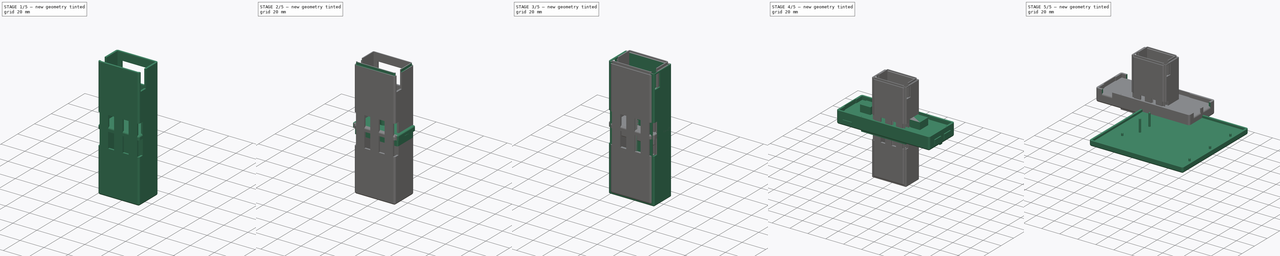
[diagram: build sequence overview — one tinted view per stage of 5, left to right]
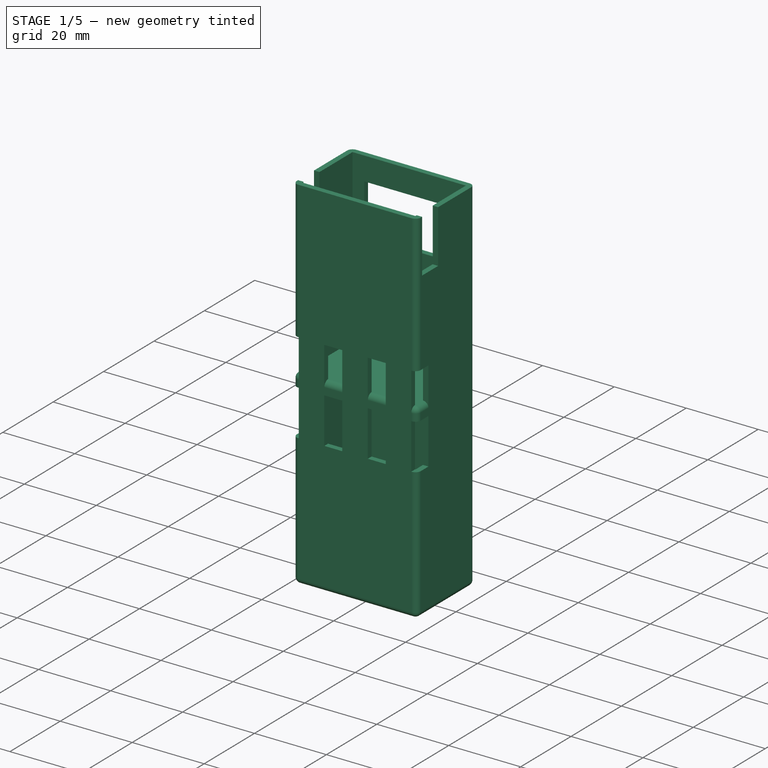
[diagram: stage 1 of 5 — iso view after this stage's code; geometry added in this stage tinted green]
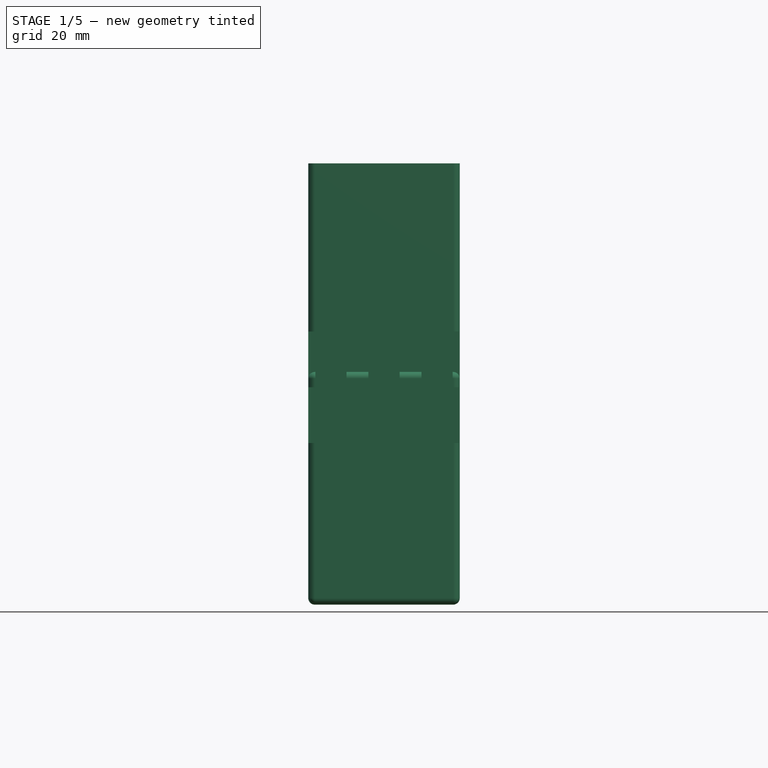
[diagram: stage 1 of 5 — front view after this stage's code; geometry added in this stage tinted green]
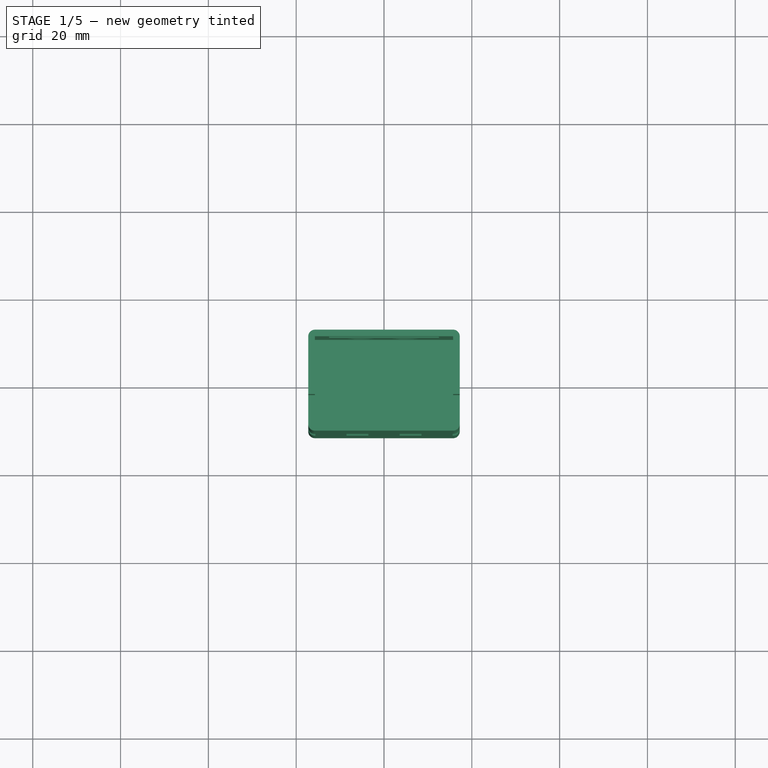
[diagram: stage 1 of 5 — top view after this stage's code; geometry added in this stage tinted green]
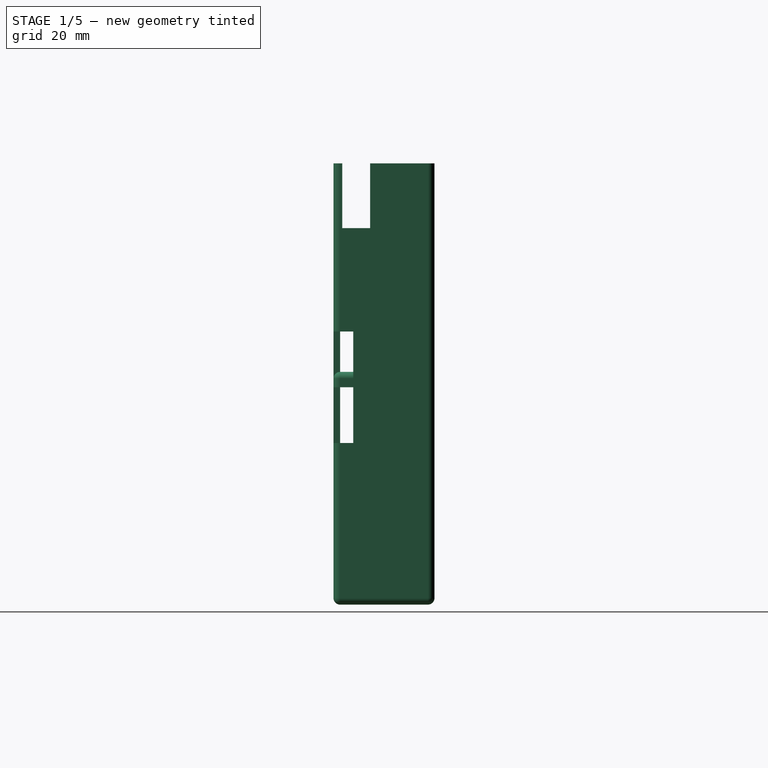
[diagram: stage 1 of 5 — right view after this stage's code; geometry added in this stage tinted green]
FCSTD DOCUMENT  (FreeCAD 0.18R16146 (Git))
Label: mobile-case
License: All rights reserved
LicenseURL: http://en.wikipedia.org/wiki/All_rights_reserved
objects: Sketcher::SketchObject×41, PartDesign::Pad×25, PartDesign::Pocket×16, PartDesign::Body×12, PartDesign::Thickness×8, PartDesign::Fillet×7, PartDesign::Chamfer×5, PartDesign::ShapeBinder×1
note: 156 computed .brp shape members not serialized (recipe doc carries the construction recipe); baked Part::Feature solids carry a one-line shape summary decoded from their .brp

FEATURE [PartDesign::Body] Body004  label="DriverLid"
  Group = -> [Sketch014,Pad011,Thickness002,Sketch015,Pad012,Fillet004]
  Origin = -> Origin004
  Placement = pos=(0,0,10) rot=(0,0,1;0rad)
  Tip = -> Fillet004
  expr: Placement.Base.z = DriverCase.Placement.Base.z + CaseBox.Length
FEATURE [Sketcher::SketchObject] Sketch020  label="SleeveBodySketch"
  MapMode = 5
  Support = -> [XY_Plane005]
  sketch-geometry (4):
    g0: LineSegment StartX=-18.25 StartY=9.5 StartZ=0 EndX=18.25 EndY=9.5 EndZ=0
    g1: LineSegment StartX=18.25 StartY=9.5 StartZ=0 EndX=18.25 EndY=-9.5 EndZ=0
    g2: LineSegment StartX=18.25 StartY=-9.5 StartZ=0 EndX=-18.25 EndY=-9.5 EndZ=0
    g3: LineSegment StartX=-18.25 StartY=-9.5 StartZ=0 EndX=-18.25 EndY=9.5 EndZ=0
  constraints (10):
    c: Coincident(g0,g1)
    c: Coincident(g1,g2)
    c: Coincident(g2,g3)
    c: Coincident(g3,g0)
    c: Horizontal(g2)
    c: Vertical(g3)
    c: Symmetric(g0,g0,g-2)
    c: Symmetric(g0,g1,g-1)
    c: Distance(g0) = 36.5  'width'
    c: Distance(g3) = 19  'height'
FEATURE [PartDesign::Pad] Pad015  label="DSleeveBodyPad"
  Length = 100
  Length2 = 100
  Midplane = true
  Profile = -> Sketch020
  Type = 0
FEATURE [PartDesign::Body] Body006  label="DriverSleeveLid"
  Group = -> [Sketch025,Pad016,Thickness004,Sketch026,Pad017,Fillet005,Sketch031,Pocket007,Chamfer002]
  Placement = pos=(0,0,50) rot=(0,0,1;0rad)
  Tip = -> Chamfer002
FEATURE [Sketcher::SketchObject] Sketch036  label="CSleeveSketch"
  MapMode = 5
  Support = -> [XY_Plane009]
  sketch-geometry (4):
    g0: LineSegment StartX=-15.75 StartY=10 StartZ=0 EndX=15.75 EndY=10 EndZ=0
    g1: LineSegment StartX=15.75 StartY=10 StartZ=0 EndX=15.75 EndY=-10 EndZ=0
    g2: LineSegment StartX=15.75 StartY=-10 StartZ=0 EndX=-15.75 EndY=-10 EndZ=0
    g3: LineSegment StartX=-15.75 StartY=-10 StartZ=0 EndX=-15.75 EndY=10 EndZ=0
  constraints (10):
    c: Coincident(g0,g1)
    c: Coincident(g1,g2)
    c: Coincident(g2,g3)
    c: Coincident(g3,g0)
    c: Horizontal(g2)
    c: Vertical(g3)
    c: Symmetric(g0,g0,g-2)
    c: Symmetric(g0,g1,g-1)
    c: Distance(g0) = 31.5  'width'
    c: Distance(g3) = 20  'height'
FEATURE [PartDesign::Pad] Pad022  label="CSleeveBodyPad"
  Length = 51
  Length2 = 48
  Midplane = true
  Profile = -> Sketch036
  Type = 4
  expr: Length2 = DSleeveBodyPad.Length / 2 - 2mm
  expr: Length = DSleeveBodyPad.Length / 2 + 1mm
FEATURE [PartDesign::Thickness] Thickness006  label="CSleeveBodyThickness"
  Base = -> Pad022 [Face6]
  BaseFeature = -> Pad022
  Join = 0
  Mode = 0
  Value = 1.5
FEATURE [Sketcher::SketchObject] Sketch037
  ExternalGeometry = -> [Thickness006]
  MapMode = 5
  Support = -> [XY_Plane009]
  sketch-geometry (8):
    g0: LineSegment StartX=-4.25 StartY=9 StartZ=0 EndX=4.25 EndY=9 EndZ=0
    g1: LineSegment StartX=4.25 StartY=9 StartZ=0 EndX=4.25 EndY=7.25 EndZ=0
    g2: LineSegment StartX=4.25 StartY=7.25 StartZ=0 EndX=2.5 EndY=5.5 EndZ=0
    g3: LineSegment StartX=2.5 StartY=5.5 StartZ=0 EndX=-2.5 EndY=5.5 EndZ=0
    g4: LineSegment StartX=-2.5 StartY=5.5 StartZ=0 EndX=-4.25 EndY=7.25 EndZ=0
    g5: LineSegment StartX=-4.25 StartY=7.25 StartZ=0 EndX=-4.25 EndY=9 EndZ=0
    g6: LineSegment [constr] StartX=4.25 StartY=7.25 StartZ=0 EndX=-4.25 EndY=7.25 EndZ=0
    g7: GeomPoint X=-2.5 Y=9 Z=0
  constraints (18):
    c: Coincident(g0,g1)
    c: Coincident(g1,g2)
    c: Coincident(g2,g3)
    c: Coincident(g3,g4)
    c: Coincident(g4,g5)
    c: Coincident(g5,g0)
    c: Symmetric(g0,g0,g-2)
    c: Vertical(g1)
    c: Symmetric(g3,g2,g-2)
    c: Symmetric(g1,g4,g-2)
    c: DistanceX(g0,g0) = 8.5
    c: DistanceY(g2,g0) = 3.5
    c: Coincident(g6,g1)
    c: Coincident(g6,g4)
    c: PointOnObject(g7,g0)
    c: Symmetric(g7,g3,g6)
    c: Angle(g4,g6) = 0.785398
    c: DistanceY(g0,g-3) = 1
FEATURE [PartDesign::Pocket] Pocket008  label="USB"
  BaseFeature = -> Thickness006
  Length = 5
  Length2 = 100
  Profile = -> Sketch037
  Type = 1
FEATURE [Sketcher::SketchObject] Sketch039
  AttachmentOffset = pos=(0,0,7) rot=(0,0,1;0rad)
  MapMode = 5
  Placement = pos=(0,-7,-1.6e-15) rot=(1,0,0;1.5708rad)
  Support = -> [XZ_Plane009]
  sketch-geometry (19):
    g0: LineSegment StartX=-26.6571 StartY=12.7 StartZ=0 EndX=-15.6358 EndY=12.7 EndZ=0
    g1: LineSegment StartX=-15.6358 StartY=12.7 StartZ=0 EndX=-15.6358 EndY=-12.7 EndZ=0
    g2: LineSegment StartX=-15.6358 StartY=-12.7 StartZ=0 EndX=-26.6571 EndY=-12.7 EndZ=0
    g3: LineSegment StartX=-26.6571 StartY=-12.7 StartZ=0 EndX=-26.6571 EndY=12.7 EndZ=0
    g4: LineSegment StartX=-8.54528 StartY=12.7 StartZ=0 EndX=-3.54528 EndY=12.7 EndZ=0
    g5: LineSegment StartX=-3.54528 StartY=12.7 StartZ=0 EndX=-3.54528 EndY=-12.7 EndZ=0
    g6: LineSegment StartX=-3.54528 StartY=-12.7 StartZ=0 EndX=-8.54528 EndY=-12.7 EndZ=0
    g7: LineSegment StartX=-8.54528 StartY=-12.7 StartZ=0 EndX=-8.54528 EndY=12.7 EndZ=0
    g8: LineSegment StartX=3.54528 StartY=12.7 StartZ=0 EndX=8.54528 EndY=12.7 EndZ=0
    g9: LineSegment StartX=8.54528 StartY=12.7 StartZ=0 EndX=8.54528 EndY=-12.7 EndZ=0
    g10: LineSegment StartX=8.54528 StartY=-12.7 StartZ=0 EndX=3.54528 EndY=-12.7 EndZ=0
    g11: LineSegment StartX=3.54528 StartY=-12.7 StartZ=0 EndX=3.54528 EndY=12.7 EndZ=0
    g12: LineSegment StartX=15.6358 StartY=12.7 StartZ=0 EndX=26.6571 EndY=12.7 EndZ=0
    g13: LineSegment StartX=26.6571 StartY=12.7 StartZ=0 EndX=26.6571 EndY=-12.7 EndZ=0
    g14: LineSegment StartX=26.6571 StartY=-12.7 StartZ=0 EndX=15.6358 EndY=-12.7 EndZ=0
    g15: LineSegment StartX=15.6358 StartY=-12.7 StartZ=0 EndX=15.6358 EndY=12.7 EndZ=0
    g16: LineSegment [constr] StartX=-15.6358 StartY=12.7 StartZ=0 EndX=-8.54528 EndY=12.7 EndZ=0
    g17: LineSegment [constr] StartX=-3.54528 StartY=12.7 StartZ=0 EndX=3.54528 EndY=12.7 EndZ=0
    g18: LineSegment [constr] StartX=8.54528 StartY=12.7 StartZ=0 EndX=15.6358 EndY=12.7 EndZ=0
  constraints (50):
    c: Coincident(g0,g1)
    c: Coincident(g1,g2)
    c: Coincident(g2,g3)
    c: Coincident(g3,g0)
    c: Horizontal(g0)
    c: Vertical(g1)
    c: Coincident(g4,g5)
    c: Coincident(g5,g6)
    c: Coincident(g6,g7)
    c: Coincident(g7,g4)
    c: Horizontal(g4)
    c: Vertical(g5)
    c: Vertical(g7)
    c: Coincident(g8,g9)
    c: Coincident(g9,g10)
    c: Coincident(g10,g11)
    c: Coincident(g11,g8)
    c: Horizontal(g8)
    c: Vertical(g9)
    c: Vertical(g11)
    c: Coincident(g12,g13)
    c: Coincident(g13,g14)
    c: Coincident(g14,g15)
    c: Coincident(g15,g12)
    c: Horizontal(g12)
    c: Vertical(g13)
    c: Vertical(g15)
    c: Distance(g3) = 25.4
    c: Horizontal(g0,g4)
    c: Horizontal(g4,g8)
    c: Equal(g9,g11)
    c: Equal(g11,g13)
    c: Equal(g13,g15)
    c: Equal(g15,g1)
    c: Equal(g1,g3)
    c: Equal(g3,g5)
    c: Equal(g5,g7)
    c: Symmetric(g0,g2,g-1)
    c: Symmetric(g0,g12,g-2)
    c: Equal(g0,g12)
    c: Equal(g8,g4)
    c: Coincident(g16,g0)
    c: Coincident(g16,g4)
    c: Coincident(g17,g4)
    c: Coincident(g17,g8)
    c: Coincident(g18,g8)
    c: Coincident(g18,g12)
    c: Distance(g4) = 5
    c: Equal(g16,g17)
    c: Equal(g17,g18)
FEATURE [PartDesign::Pocket] Pocket010  label="Armband pocket"
  BaseFeature = -> Pocket008
  Length = 5
  Length2 = 3
  Profile = -> Sketch039
  Reversed = true
  Type = 0
FEATURE [Sketcher::SketchObject] Sketch040
  MapMode = 5
  Placement = pos=(0,0,0) rot=(0.57735,0.57735,0.57735;2.0944rad)
  Support = -> [YZ_Plane009]
  sketch-geometry (6):
    g0: LineSegment StartX=-9.5 StartY=51.4235 StartZ=0 EndX=-3.15 EndY=51.4235 EndZ=0
    g1: LineSegment StartX=-3.15 StartY=51.4235 StartZ=0 EndX=-3.15 EndY=36.25 EndZ=0
    g2: LineSegment StartX=-3.15 StartY=36.25 StartZ=0 EndX=-9.5 EndY=36.25 EndZ=0
    g3: LineSegment StartX=-9.5 StartY=36.25 StartZ=0 EndX=-9.5 EndY=51.4235 EndZ=0
    g4: LineSegment [constr] StartX=-6.325 StartY=36.25 StartZ=0 EndX=-6.325 EndY=51.4235 EndZ=0
    g5: LineSegment [constr] StartX=-9.5 StartY=41.75 StartZ=0 EndX=-3.15 EndY=41.75 EndZ=0
  constraints (17):
    c: Coincident(g0,g1)
    c: Coincident(g1,g2)
    c: Coincident(g2,g3)
    c: Coincident(g3,g0)
    c: Horizontal(g2)
    c: Vertical(g1)
    c: Vertical(g3)
    c: Distance(g0) = 6.35
    c: PointOnObject(g4,g2)
    c: PointOnObject(g4,g0)
    c: Vertical(g4)
    c: Symmetric(g0,g0,g4)
    c: DistanceX(g2) = -9.5
    c: PointOnObject(g5,g3)
    c: PointOnObject(g5,g1)
    c: DistanceY(g5) = 41.75
    c: DistanceY(g2,g5) = 5.5
FEATURE [PartDesign::Pocket] Pocket011  label="CSleeveSidePocket"
  BaseFeature = -> Pocket010
  Length = 5
  Length2 = 100
  Midplane = true
  Profile = -> Sketch040
  Type = 1
FEATURE [PartDesign::Body] Body010  label="ButtonPad"
  Group = -> [Sketch041,Pad023,Sketch042,Pad024,Sketch043,Pocket012,Chamfer004]
  Origin = -> Origin010
  Placement = pos=(0,0,6) rot=(0,0,1;0rad)
  Tip = -> Chamfer004
FEATURE [Sketcher::SketchObject] Sketch044
  MapMode = 5
  Placement = pos=(0,0,0) rot=(1,0,0;1.5708rad)
  Support = -> [XZ_Plane009]
  sketch-geometry (6):
    g0: Circle CenterX=-5.08 CenterY=17 CenterZ=0 NormalX=0 NormalY=0 NormalZ=1 AngleXU=0 Radius=3.25
    g1: Circle CenterX=5.08 CenterY=17 CenterZ=0 NormalX=0 NormalY=0 NormalZ=1 AngleXU=0 Radius=3.25
    g2: LineSegment StartX=-12.5 StartY=44.5 StartZ=0 EndX=12.5 EndY=44.5 EndZ=0
    g3: LineSegment StartX=12.5 StartY=44.5 StartZ=0 EndX=12.5 EndY=30.75 EndZ=0
    g4: LineSegment StartX=12.5 StartY=30.75 StartZ=0 EndX=-12.5 EndY=30.75 EndZ=0
    g5: LineSegment StartX=-12.5 StartY=30.75 StartZ=0 EndX=-12.5 EndY=44.5 EndZ=0
  constraints (16):
    c: Equal(g1,g0)
    c: Symmetric(g1,g0,g-2)
    c: Radius(g0) = 3.25
    c: DistanceX(g1) = 5.08
    c: DistanceY(g1) = 17
    c: Coincident(g2,g3)
    c: Coincident(g3,g4)
    c: Coincident(g4,g5)
    c: Coincident(g5,g2)
    c: Horizontal(g4)
    c: Vertical(g3)
    c: Vertical(g5)
    c: Symmetric(g2,g2,g-2)
    c: Distance(g3) = 13.75
    c: Distance(g2) = 25
    c: DistanceY(g2) = 44.5
FEATURE [PartDesign::Pocket] Pocket013  label="FaceHoles"
  BaseFeature = -> Pocket011
  Length = 5
  Length2 = 100
  Profile = -> Sketch044
  Type = 1
FEATURE [Sketcher::SketchObject] Sketch046
  MapMode = 5
  expr: Constraints[9] = CSleeveSketch.Constraints.height
  expr: Constraints[8] = CSleeveSketch.Constraints.width
  sketch-geometry (4):
    g0: LineSegment StartX=-15.75 StartY=10 StartZ=0 EndX=15.75 EndY=10 EndZ=0
    g1: LineSegment StartX=15.75 StartY=10 StartZ=0 EndX=15.75 EndY=-10 EndZ=0
    g2: LineSegment StartX=15.75 StartY=-10 StartZ=0 EndX=-15.75 EndY=-10 EndZ=0
    g3: LineSegment StartX=-15.75 StartY=-10 StartZ=0 EndX=-15.75 EndY=10 EndZ=0
  constraints (10):
    c: Coincident(g0,g1)
    c: Coincident(g1,g2)
    c: Coincident(g2,g3)
    c: Coincident(g3,g0)
    c: Horizontal(g2)
    c: Vertical(g3)
    c: Symmetric(g0,g0,g-2)
    c: Symmetric(g0,g1,g-1)
    c: Distance(g0) = 31.5
    c: Distance(g3) = 20
FEATURE [PartDesign::Pad] Pad026
  Length = 2
  Length2 = 100
  Profile = -> Sketch046
  Type = 0
FEATURE [PartDesign::Thickness] Thickness008
  Base = -> Pad026 [Face5]
  BaseFeature = -> Pad026
  Join = 0
  Mode = 0
  Value = 1.5
  expr: Value = CSleeveBodyThickness.Value
FEATURE [Sketcher::SketchObject] Sketch048
  MapMode = 5
  sketch-geometry (12):
    g0: LineSegment StartX=-28.1388 StartY=2.5 StartZ=0 EndX=-2.5 EndY=2.5 EndZ=0
    g1: LineSegment StartX=28.1388 StartY=2.5 StartZ=0 EndX=28.1388 EndY=-2.5 EndZ=0
    g2: LineSegment StartX=28.1388 StartY=-2.5 StartZ=0 EndX=2.5 EndY=-2.5 EndZ=0
    g3: LineSegment StartX=-28.1388 StartY=-2.5 StartZ=0 EndX=-28.1388 EndY=2.5 EndZ=0
    g4: LineSegment StartX=2.5 StartY=15.9138 StartZ=0 EndX=-2.5 EndY=15.9138 EndZ=0
    g5: LineSegment StartX=-2.5 StartY=15.9138 StartZ=0 EndX=-2.5 EndY=2.5 EndZ=0
    g6: LineSegment StartX=-2.5 StartY=-15.9138 StartZ=0 EndX=2.5 EndY=-15.9138 EndZ=0
    g7: LineSegment StartX=2.5 StartY=-15.9138 StartZ=0 EndX=2.5 EndY=-2.5 EndZ=0
    g8: LineSegment StartX=-2.5 StartY=-2.5 StartZ=0 EndX=-2.5 EndY=-15.9138 EndZ=0
    g9: LineSegment StartX=-2.5 StartY=-2.5 StartZ=0 EndX=-28.1388 EndY=-2.5 EndZ=0
    g10: LineSegment StartX=2.5 StartY=2.5 StartZ=0 EndX=2.5 EndY=15.9138 EndZ=0
    g11: LineSegment StartX=2.5 StartY=2.5 StartZ=0 EndX=28.1388 EndY=2.5 EndZ=0
  constraints (26):
    c: Coincident(g11,g1)
    c: Coincident(g1,g2)
    c: Coincident(g9,g3)
    c: Coincident(g3,g0)
    c: Horizontal(g2)
    c: Vertical(g3)
    c: Coincident(g4,g5)
    c: Coincident(g8,g6)
    c: Coincident(g6,g7)
    c: Coincident(g10,g4)
    c: Horizontal(g6)
    c: Vertical(g7)
    c: Equal(g4,g3)
    c: Symmetric(g4,g4,g-2)
    c: Symmetric(g11,g1,g-1)
    c: Distance(g6) = 5
    c: Tangent(g5,g8)
    c: Coincident(g9,g8)
    c: Tangent(g2,g9)
    c: Coincident(g7,g2)
    c: Tangent(g7,g10)
    c: Coincident(g0,g5)
    c: Coincident(g11,g10)
    c: Tangent(g0,g11)
    c: Symmetric(g0,g1,g-2)
    c: Symmetric(g4,g6,g-1)
FEATURE [PartDesign::Chamfer] Chamfer006  label="FaceHoleChamfer"
  Base = -> Pocket013 [Edge50,Edge48]
  BaseFeature = -> Pocket013
  Size = 1.25
FEATURE [PartDesign::Body] Body009  label="ControllerSleeve"
  Group = -> [Sketch036,Pad022,Thickness006,Sketch037,Pocket008,Sketch039,Pocket010,Sketch040,Pocket011,Sketch044,Pocket013,Chamfer006,Sketch049,Pocket015,Fillet008]
  Origin = -> Origin009
  Tip = -> Fillet008
FEATURE [Sketcher::SketchObject] Sketch050
  MapMode = 5
  Placement = pos=(0,0,2) rot=(1,0,0;3.14159rad)
  Support = -> [Thickness008]
  expr: Constraints[9] = LidTabs.Constraints.innerHeight
  expr: Constraints[8] = LidTabs.Constraints.innerWidth
  sketch-geometry (4):
    g0: LineSegment StartX=-16.5 StartY=10.75 StartZ=0 EndX=16.5 EndY=10.75 EndZ=0
    g1: LineSegment StartX=16.5 StartY=10.75 StartZ=0 EndX=16.5 EndY=-10.75 EndZ=0
    g2: LineSegment StartX=16.5 StartY=-10.75 StartZ=0 EndX=-16.5 EndY=-10.75 EndZ=0
    g3: LineSegment StartX=-16.5 StartY=-10.75 StartZ=0 EndX=-16.5 EndY=10.75 EndZ=0
  constraints (10):
    c: Coincident(g0,g1)
    c: Coincident(g1,g2)
    c: Coincident(g2,g3)
    c: Coincident(g3,g0)
    c: Horizontal(g2)
    c: Vertical(g3)
    c: Symmetric(g1,g0,g-1)
    c: Symmetric(g0,g0,g-2)
    c: Distance(g0) = 33
    c: Distance(g3) = 21.5
FEATURE [PartDesign::Pocket] Pocket016
  BaseFeature = -> Thickness008
  Length = 5
  Length2 = 100
  Profile = -> Sketch050
  Reversed = true
  Type = 0
FEATURE [PartDesign::Pocket] Pocket017
  BaseFeature = -> Pocket016
  Length = 1
  Length2 = 100
  Profile = -> Sketch048
  Reversed = true
  Type = 0
FEATURE [PartDesign::Body] Body011  label="ControllerSleeveLid"
  Group = -> [Sketch046,Pad026,Thickness008,Sketch048,Sketch050,Pocket016,Pocket017]
  Placement = pos=(0,0,49) rot=(0,0,1;0rad)
  Tip = -> Pocket017
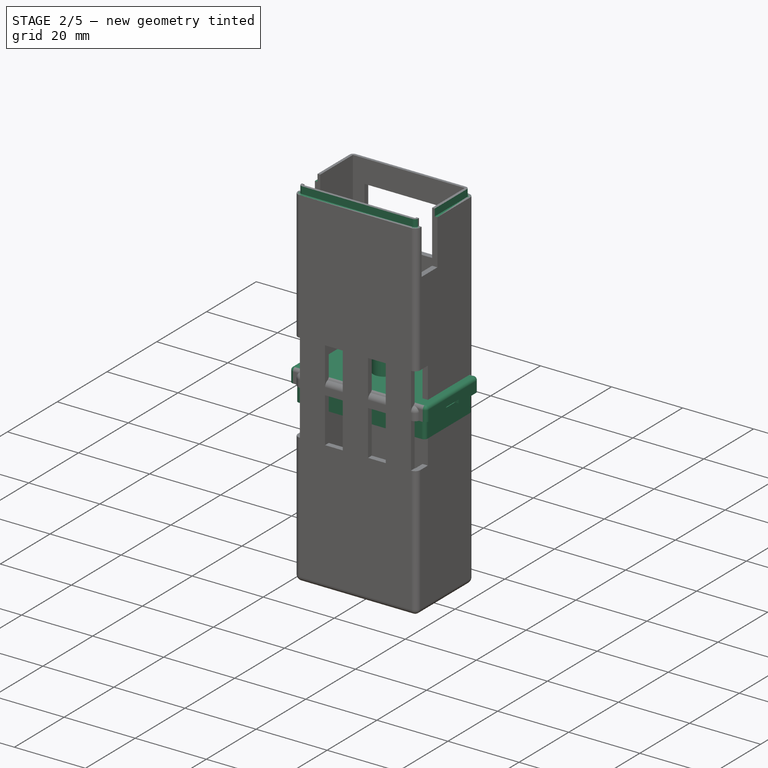
[diagram: stage 2 of 5 — iso view after this stage's code; geometry added in this stage tinted green]
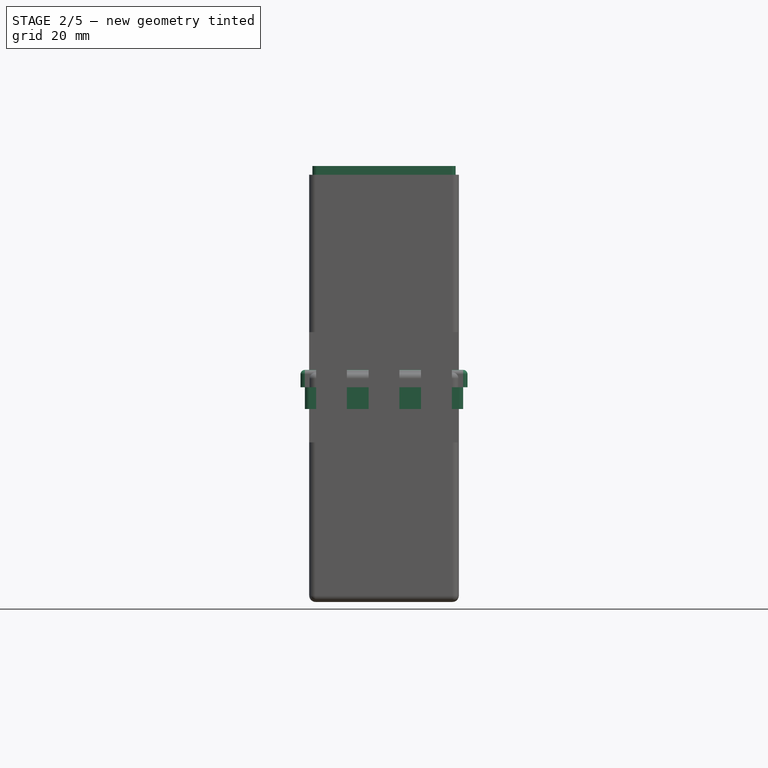
[diagram: stage 2 of 5 — front view after this stage's code; geometry added in this stage tinted green]
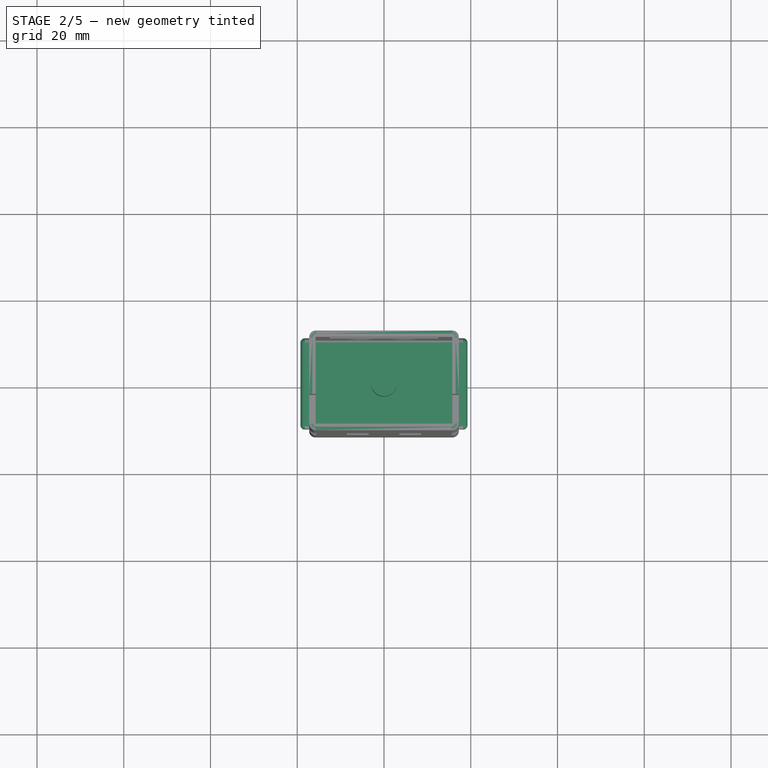
[diagram: stage 2 of 5 — top view after this stage's code; geometry added in this stage tinted green]
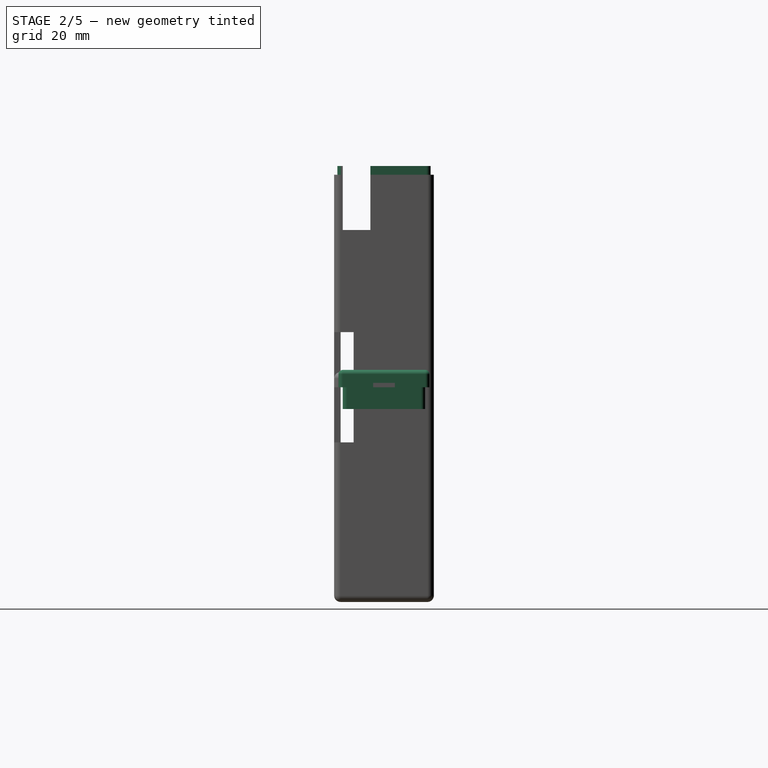
[diagram: stage 2 of 5 — right view after this stage's code; geometry added in this stage tinted green]
FEATURE [PartDesign::Thickness] Thickness003  label="SleeveBodyThickness"
  Base = -> Pad015 [Face6]
  BaseFeature = -> Pad015
  Join = 0
  Mode = 0
  Value = 1
FEATURE [Sketcher::SketchObject] Sketch025
  MapMode = 5
  expr: Constraints[9] = SleeveBodySketch.Constraints.height
  expr: Constraints[8] = SleeveBodySketch.Constraints.width
  sketch-geometry (4):
    g0: LineSegment StartX=-18.25 StartY=9.5 StartZ=0 EndX=18.25 EndY=9.5 EndZ=0
    g1: LineSegment StartX=18.25 StartY=9.5 StartZ=0 EndX=18.25 EndY=-9.5 EndZ=0
    g2: LineSegment StartX=18.25 StartY=-9.5 StartZ=0 EndX=-18.25 EndY=-9.5 EndZ=0
    g3: LineSegment StartX=-18.25 StartY=-9.5 StartZ=0 EndX=-18.25 EndY=9.5 EndZ=0
  constraints (10):
    c: Coincident(g0,g1)
    c: Coincident(g1,g2)
    c: Coincident(g2,g3)
    c: Coincident(g3,g0)
    c: Horizontal(g2)
    c: Vertical(g3)
    c: Symmetric(g0,g0,g-2)
    c: Symmetric(g0,g1,g-1)
    c: Distance(g0) = 36.5
    c: Distance(g3) = 19
FEATURE [PartDesign::Pad] Pad016
  Length = 3
  Length2 = 100
  Profile = -> Sketch025
  Type = 0
FEATURE [PartDesign::Thickness] Thickness004
  Base = -> Pad016 [Face5]
  BaseFeature = -> Pad016
  Join = 0
  Mode = 0
  Value = 1
  expr: Value = SleeveBodyThickness.Value
FEATURE [Sketcher::SketchObject] Sketch026
  MapMode = 5
  expr: Constraints[17] = SleeveBodySketch.Constraints.height
  expr: Constraints[16] = SleeveBodySketch.Constraints.width
  sketch-geometry (10):
    g0: LineSegment StartX=18.25 StartY=-9.5 StartZ=0 EndX=-18.25 EndY=-9.5 EndZ=0
    g1: LineSegment StartX=-18.25 StartY=-9.5 StartZ=0 EndX=-18.25 EndY=9.5 EndZ=0
    g2: LineSegment StartX=-18.25 StartY=9.5 StartZ=0 EndX=18.25 EndY=9.5 EndZ=0
    g3: LineSegment StartX=18.25 StartY=9.5 StartZ=0 EndX=18.25 EndY=-9.5 EndZ=0
    g4: LineSegment StartX=-17.25 StartY=-9 StartZ=0 EndX=17.25 EndY=-9 EndZ=0
    g5: LineSegment StartX=17.25 StartY=-9 StartZ=0 EndX=17.25 EndY=9 EndZ=0
    g6: LineSegment StartX=17.25 StartY=9 StartZ=0 EndX=-17.25 EndY=9 EndZ=0
    g7: LineSegment StartX=-17.25 StartY=9 StartZ=0 EndX=-17.25 EndY=-9 EndZ=0
    g8: LineSegment [constr] StartX=-17.25 StartY=9.5 StartZ=0 EndX=-17.25 EndY=9 EndZ=0
    g9: LineSegment [constr] StartX=-17.25 StartY=9 StartZ=0 EndX=-18.25 EndY=9 EndZ=0
  constraints (26):
    c: Coincident(g0,g1)
    c: Coincident(g1,g2)
    c: Coincident(g2,g3)
    c: Coincident(g3,g0)
    c: Horizontal(g0)
    c: Vertical(g3)
    c: Coincident(g4,g5)
    c: Coincident(g5,g6)
    c: Coincident(g6,g7)
    c: Coincident(g7,g4)
    c: Horizontal(g4)
    c: Vertical(g5)
    c: Symmetric(g6,g5,g-2)
    c: Symmetric(g2,g1,g-2)
    c: Symmetric(g1,g0,g-1)
    c: Symmetric(g4,g6,g-1)
    c: Distance(g2) = 36.5
    c: Distance(g1) = 19
    c: PointOnObject(g8,g2)
    c: Coincident(g8,g6)
    c: Coincident(g8,g9)
    c: PointOnObject(g9,g1)
    c: Horizontal(g9)
    c: Vertical(g8)
    c: Distance(g8) = 0.5
    c: Distance(g9) = 1
FEATURE [PartDesign::Pad] Pad017
  BaseFeature = -> Thickness004
  Length = 3
  Length2 = 5
  Profile = -> Sketch026
  Type = 4
FEATURE [PartDesign::Fillet] Fillet005
  Base = -> Pad017 [Edge19,Edge22,Edge20,Edge17,Face1]
  BaseFeature = -> Pad017
  Radius = 1
FEATURE [PartDesign::Body] Body007  label="ButtonTower"
  Group = -> [Sketch029,Pad018,Thickness005,Sketch030,Pocket006]
  Origin = -> Origin007
  Tip = -> Pocket006
FEATURE [Sketcher::SketchObject] Sketch031
  MapMode = 5
  sketch-geometry (12):
    g0: LineSegment StartX=-28.1388 StartY=2.5 StartZ=0 EndX=-2.5 EndY=2.5 EndZ=0
    g1: LineSegment StartX=28.1388 StartY=2.5 StartZ=0 EndX=28.1388 EndY=-2.5 EndZ=0
    g2: LineSegment StartX=28.1388 StartY=-2.5 StartZ=0 EndX=2.5 EndY=-2.5 EndZ=0
    g3: LineSegment StartX=-28.1388 StartY=-2.5 StartZ=0 EndX=-28.1388 EndY=2.5 EndZ=0
    g4: LineSegment StartX=2.5 StartY=15.9138 StartZ=0 EndX=-2.5 EndY=15.9138 EndZ=0
    g5: LineSegment StartX=-2.5 StartY=15.9138 StartZ=0 EndX=-2.5 EndY=2.5 EndZ=0
    g6: LineSegment StartX=-2.5 StartY=-15.9138 StartZ=0 EndX=2.5 EndY=-15.9138 EndZ=0
    g7: LineSegment StartX=2.5 StartY=-15.9138 StartZ=0 EndX=2.5 EndY=-2.5 EndZ=0
    g8: LineSegment StartX=-2.5 StartY=-2.5 StartZ=0 EndX=-2.5 EndY=-15.9138 EndZ=0
    g9: LineSegment StartX=-2.5 StartY=-2.5 StartZ=0 EndX=-28.1388 EndY=-2.5 EndZ=0
    g10: LineSegment StartX=2.5 StartY=2.5 StartZ=0 EndX=2.5 EndY=15.9138 EndZ=0
    g11: LineSegment StartX=2.5 StartY=2.5 StartZ=0 EndX=28.1388 EndY=2.5 EndZ=0
  constraints (26):
    c: Coincident(g11,g1)
    c: Coincident(g1,g2)
    c: Coincident(g9,g3)
    c: Coincident(g3,g0)
    c: Horizontal(g2)
    c: Vertical(g3)
    c: Coincident(g4,g5)
    c: Coincident(g8,g6)
    c: Coincident(g6,g7)
    c: Coincident(g10,g4)
    c: Horizontal(g6)
    c: Vertical(g7)
    c: Equal(g4,g3)
    c: Symmetric(g4,g4,g-2)
    c: Symmetric(g11,g1,g-1)
    c: Distance(g6) = 5
    c: Tangent(g5,g8)
    c: Coincident(g9,g8)
    c: Tangent(g2,g9)
    c: Coincident(g7,g2)
    c: Tangent(g7,g10)
    c: Coincident(g0,g5)
    c: Coincident(g11,g10)
    c: Tangent(g0,g11)
    c: Symmetric(g0,g1,g-2)
    c: Symmetric(g4,g6,g-1)
FEATURE [PartDesign::Pocket] Pocket007
  BaseFeature = -> Fillet005
  Length = 1
  Length2 = 1
  Profile = -> Sketch031
  Reversed = true
  Type = 0
FEATURE [Sketcher::SketchObject] Sketch041
  AttachmentOffset = pos=(0,0,1) rot=(0,0,1;0rad)
  MapMode = 5
  Placement = pos=(0,0,1) rot=(0,0,1;0rad)
  Support = -> [XY_Plane010]
  sketch-geometry (1):
    g0: Circle CenterX=0 CenterY=0 CenterZ=0 NormalX=0 NormalY=0 NormalZ=1 AngleXU=0 Radius=3
  constraints (2):
    c: Coincident(g0,g-1)
    c: Radius(g0) = 3
FEATURE [PartDesign::Pad] Pad023
  Length = 12
  Length2 = 100
  Profile = -> Sketch041
  Type = 0
FEATURE [Sketcher::SketchObject] Sketch042
  MapMode = 5
  Support = -> [XY_Plane010]
  sketch-geometry (4):
    g0: LineSegment StartX=-1 StartY=-5.5 StartZ=0 EndX=-1 EndY=5.5 EndZ=0
    g1: LineSegment StartX=1 StartY=5.5 StartZ=0 EndX=1 EndY=-5.5 EndZ=0
    g2: LineSegment StartX=-1 StartY=-5.5 StartZ=0 EndX=1 EndY=-5.5 EndZ=0
    g3: LineSegment StartX=1 StartY=5.5 StartZ=0 EndX=-1 EndY=5.5 EndZ=0
  constraints (10):
    c: Vertical(g1)
    c: Symmetric(g1,g0,g-2)
    c: Symmetric(g0,g0,g-1)
    c: DistanceX(g0,g1) = 2
    c: Distance(g0) = 11
    c: Coincident(g2,g0)
    c: Coincident(g2,g1)
    c: Coincident(g3,g1)
    c: Coincident(g3,g0)
    c: Horizontal(g3)
FEATURE [PartDesign::Pad] Pad024
  BaseFeature = -> Pad023
  Length = 1
  Length2 = 6
  Profile = -> Sketch042
  Type = 4
FEATURE [Sketcher::SketchObject] Sketch043
  MapMode = 5
  Support = -> [XY_Plane010]
  sketch-geometry (4):
    g0: LineSegment StartX=-5.94888 StartY=4.5 StartZ=0 EndX=5.94888 EndY=4.5 EndZ=0
    g1: LineSegment StartX=5.94888 StartY=4.5 StartZ=0 EndX=5.94888 EndY=-4.5 EndZ=0
    g2: LineSegment StartX=5.94888 StartY=-4.5 StartZ=0 EndX=-5.94888 EndY=-4.5 EndZ=0
    g3: LineSegment StartX=-5.94888 StartY=-4.5 StartZ=0 EndX=-5.94888 EndY=4.5 EndZ=0
  constraints (9):
    c: Coincident(g0,g1)
    c: Coincident(g1,g2)
    c: Coincident(g2,g3)
    c: Coincident(g3,g0)
    c: Horizontal(g2)
    c: Vertical(g3)
    c: Symmetric(g1,g0,g-1)
    c: Symmetric(g0,g0,g-2)
    c: DistanceY(g1,g1) = 9
FEATURE [PartDesign::Pocket] Pocket012
  BaseFeature = -> Pad024
  Length = 5
  Length2 = 100
  Profile = -> Sketch043
  Type = 1
FEATURE [PartDesign::Chamfer] Chamfer004
  Base = -> Pocket012 [Edge8,Edge12]
  BaseFeature = -> Pocket012
  Size = 0.99
FEATURE [Sketcher::SketchObject] Sketch049  label="LidTabs"
  AttachmentOffset = pos=(0,0,49) rot=(0,0,1;0rad)
  MapMode = 5
  Placement = pos=(0,0,49) rot=(0,0,1;0rad)
  Support = -> [XY_Plane009]
  expr: Constraints.innerHeight = CSleeveSketch.Constraints.height + 1.5mm
  expr: AttachmentOffset.Base.z = CSleeveBodyPad.Length - 2mm
  expr: Constraints.innerWidth = CSleeveSketch.Constraints.width + 1.5mm
  sketch-geometry (8):
    g0: LineSegment StartX=-16.5 StartY=10.75 StartZ=0 EndX=16.5 EndY=10.75 EndZ=0
    g1: LineSegment StartX=16.5 StartY=10.75 StartZ=0 EndX=16.5 EndY=-10.75 EndZ=0
    g2: LineSegment StartX=16.5 StartY=-10.75 StartZ=0 EndX=-16.5 EndY=-10.75 EndZ=0
    g3: LineSegment StartX=-16.5 StartY=-10.75 StartZ=0 EndX=-16.5 EndY=10.75 EndZ=0
    g4: LineSegment StartX=-18.4443 StartY=12.702 StartZ=0 EndX=18.4443 EndY=12.702 EndZ=0
    g5: LineSegment StartX=18.4443 StartY=12.702 StartZ=0 EndX=18.4443 EndY=-12.702 EndZ=0
    g6: LineSegment StartX=18.4443 StartY=-12.702 StartZ=0 EndX=-18.4443 EndY=-12.702 EndZ=0
    g7: LineSegment StartX=-18.4443 StartY=-12.702 StartZ=0 EndX=-18.4443 EndY=12.702 EndZ=0
  constraints (18):
    c: Coincident(g0,g1)
    c: Coincident(g1,g2)
    c: Coincident(g2,g3)
    c: Coincident(g3,g0)
    c: Horizontal(g2)
    c: Vertical(g3)
    c: Symmetric(g1,g0,g-1)
    c: Symmetric(g0,g0,g-2)
    c: Distance(g0) = 33  'innerWidth'
    c: Distance(g3) = 21.5  'innerHeight'
    c: Coincident(g4,g5)
    c: Coincident(g5,g6)
    c: Coincident(g6,g7)
    c: Coincident(g7,g4)
    c: Horizontal(g6)
    c: Vertical(g5)
    c: Symmetric(g4,g4,g-2)
    c: Symmetric(g4,g6,g-1)
FEATURE [PartDesign::Pocket] Pocket015
  BaseFeature = -> Chamfer006
  Length = 5
  Length2 = 100
  Profile = -> Sketch049
  Reversed = true
  Type = 1
FEATURE [PartDesign::Fillet] Fillet008
  Base = -> Pocket015 [Edge136,Edge167,Edge173,Edge135]
  BaseFeature = -> Pocket015
  Radius = 1
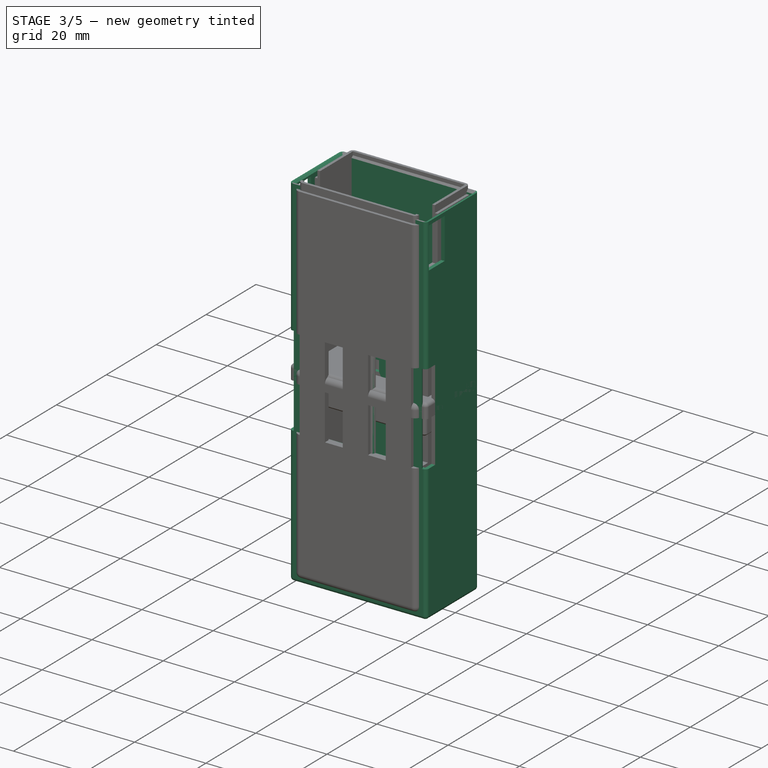
[diagram: stage 3 of 5 — iso view after this stage's code; geometry added in this stage tinted green]
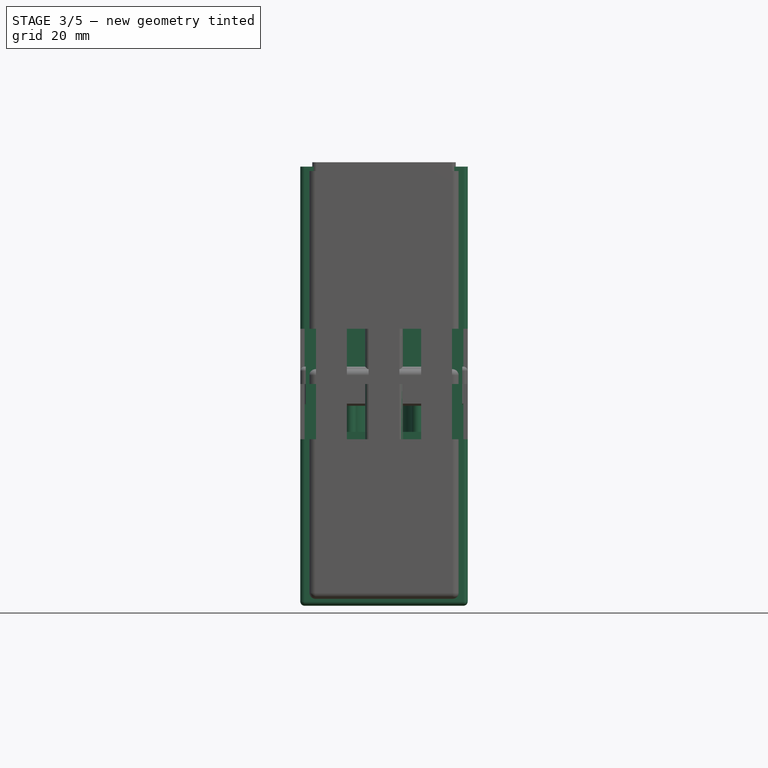
[diagram: stage 3 of 5 — front view after this stage's code; geometry added in this stage tinted green]
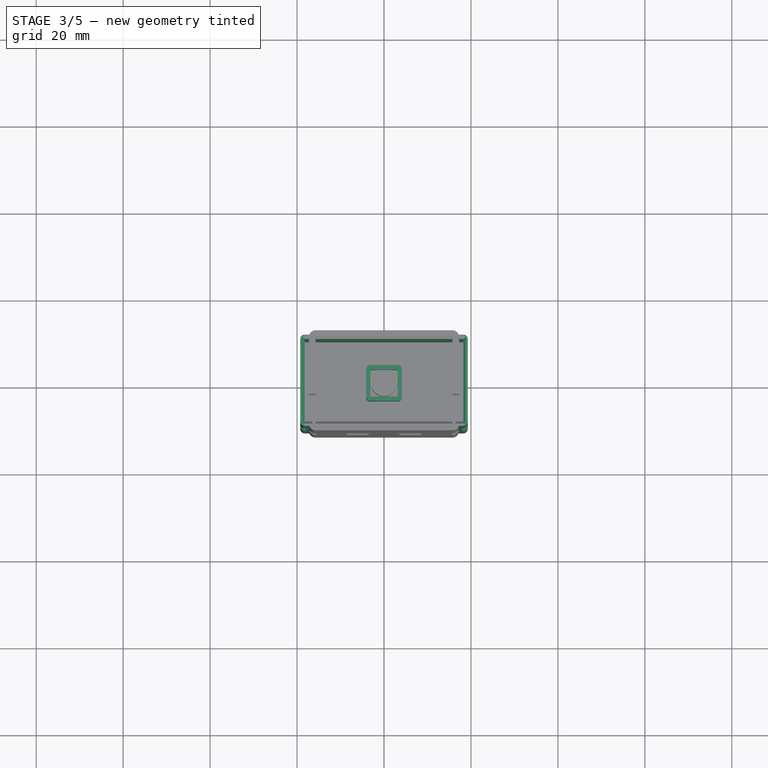
[diagram: stage 3 of 5 — top view after this stage's code; geometry added in this stage tinted green]
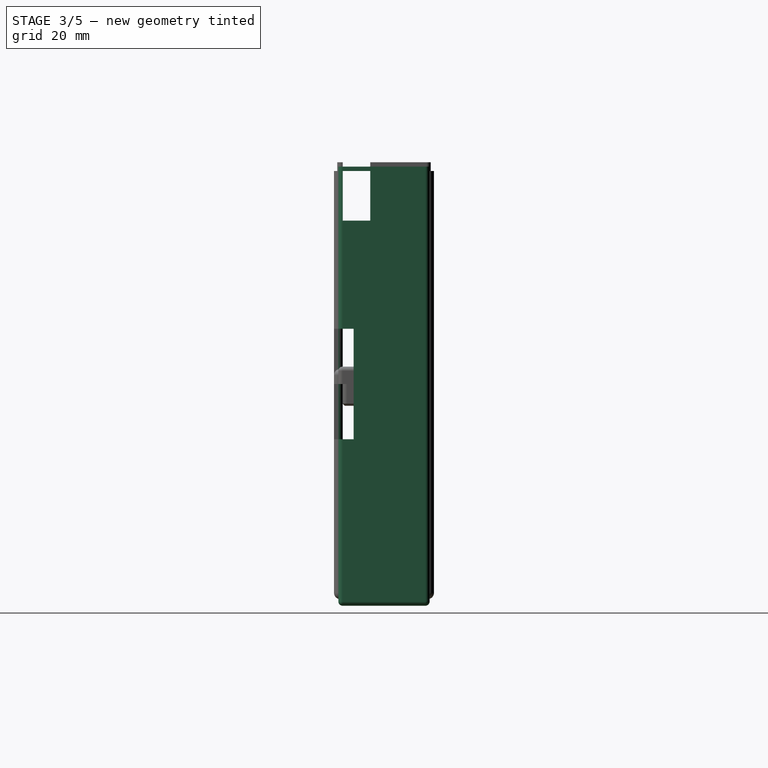
[diagram: stage 3 of 5 — right view after this stage's code; geometry added in this stage tinted green]
FEATURE [Sketcher::SketchObject] Sketch021
  ExternalGeometry = -> [Thickness003]
  MapMode = 5
  Support = -> [XY_Plane005]
  sketch-geometry (10):
    g0: LineSegment StartX=1.905 StartY=0.215 StartZ=0 EndX=13.335 EndY=0.215 EndZ=0
    g1: LineSegment StartX=13.335 StartY=0.215 StartZ=0 EndX=13.335 EndY=-6.135 EndZ=0
    g2: LineSegment StartX=13.335 StartY=-6.135 StartZ=0 EndX=1.905 EndY=-6.135 EndZ=0
    g3: LineSegment StartX=1.905 StartY=-6.135 StartZ=0 EndX=1.905 EndY=0.215 EndZ=0
    g4: LineSegment StartX=-1.905 StartY=0.215 StartZ=0 EndX=-13.335 EndY=0.215 EndZ=0
    g5: LineSegment StartX=-13.335 StartY=0.215 StartZ=0 EndX=-13.335 EndY=-6.135 EndZ=0
    g6: LineSegment StartX=-13.335 StartY=-6.135 StartZ=0 EndX=-1.905 EndY=-6.135 EndZ=0
    g7: LineSegment StartX=-1.905 StartY=-6.135 StartZ=0 EndX=-1.905 EndY=0.215 EndZ=0
    g8: LineSegment [constr] StartX=-13.335 StartY=-2.96 StartZ=0 EndX=-1.905 EndY=-2.96 EndZ=0
    g9: LineSegment [constr] StartX=-7.62 StartY=0.215 StartZ=0 EndX=-7.62 EndY=-6.135 EndZ=0
  constraints (28):
    c: Coincident(g0,g1)
    c: Coincident(g1,g2)
    c: Coincident(g2,g3)
    c: Coincident(g3,g0)
    c: Horizontal(g0)
    c: Horizontal(g2)
    c: Vertical(g1)
    c: Vertical(g3)
    c: Coincident(g4,g5)
    c: Coincident(g5,g6)
    c: Coincident(g6,g7)
    c: Coincident(g7,g4)
    c: Horizontal(g4)
    c: Horizontal(g6)
    c: Vertical(g5)
    c: Vertical(g7)
    c: Symmetric(g4,g0,g-2)
    c: Symmetric(g1,g5,g-2)
    c: Distance(g4) = 11.43
    c: Distance(g5) = 6.35
    c: PointOnObject(g8,g5)
    c: PointOnObject(g8,g7)
    c: Symmetric(g5,g4,g8)
    c: DistanceY(g-3,g8) = 6.54
    c: PointOnObject(g9,g4)
    c: PointOnObject(g9,g6)
    c: Symmetric(g4,g4,g9)
    c: DistanceX(g9,g-1) = 7.62
FEATURE [PartDesign::Pocket] Pocket003  label="Front pocket"
  BaseFeature = -> Thickness003
  Length = 5
  Length2 = 100
  Profile = -> Sketch021
  Type = 1
FEATURE [Sketcher::SketchObject] Sketch022
  ExternalGeometry = -> [Pocket003]
  MapMode = 5
  Placement = pos=(0,0,0) rot=(0.57735,0.57735,0.57735;2.0944rad)
  Support = -> [YZ_Plane005]
  sketch-geometry (5):
    g0: LineSegment StartX=-9.5 StartY=49 StartZ=0 EndX=-3.15 EndY=49 EndZ=0
    g1: LineSegment StartX=-3.15 StartY=49 StartZ=0 EndX=-3.15 EndY=37.57 EndZ=0
    g2: LineSegment StartX=-3.15 StartY=37.57 StartZ=0 EndX=-9.5 EndY=37.57 EndZ=0
    g3: LineSegment StartX=-9.5 StartY=37.57 StartZ=0 EndX=-9.5 EndY=49 EndZ=0
    g4: LineSegment [constr] StartX=-6.325 StartY=37.57 StartZ=0 EndX=-6.325 EndY=49 EndZ=0
  constraints (15):
    c: Coincident(g0,g1)
    c: Coincident(g1,g2)
    c: Coincident(g2,g3)
    c: Coincident(g3,g0)
    c: Horizontal(g2)
    c: Vertical(g1)
    c: Vertical(g3)
    c: Distance(g0) = 6.35
    c: PointOnObject(g4,g2)
    c: PointOnObject(g4,g0)
    c: Vertical(g4)
    c: Symmetric(g0,g0,g4)
    c: DistanceX(g-3,g0) = 0
    c: DistanceY(g1,g1) = 11.43
    c: DistanceY(g0,g-3) = 1
FEATURE [PartDesign::Pocket] Pocket004  label="Side pockets"
  BaseFeature = -> Pocket003
  Length = 5
  Length2 = 100
  Midplane = true
  Profile = -> Sketch022
  Type = 1
FEATURE [Sketcher::SketchObject] Sketch028
  AttachmentOffset = pos=(0,0,7) rot=(0,0,1;0rad)
  MapMode = 5
  Placement = pos=(0,-7,-1.6e-15) rot=(1,0,0;1.5708rad)
  Support = -> [XZ_Plane005]
  sketch-geometry (19):
    g0: LineSegment StartX=-28 StartY=12.7 StartZ=0 EndX=-18 EndY=12.7 EndZ=0
    g1: LineSegment StartX=-18 StartY=12.7 StartZ=0 EndX=-18 EndY=-12.7 EndZ=0
    g2: LineSegment StartX=-18 StartY=-12.7 StartZ=0 EndX=-28 EndY=-12.7 EndZ=0
    g3: LineSegment StartX=-28 StartY=-12.7 StartZ=0 EndX=-28 EndY=12.7 EndZ=0
    g4: LineSegment StartX=28 StartY=12.7 StartZ=0 EndX=18 EndY=12.7 EndZ=0
    g5: LineSegment StartX=18 StartY=12.7 StartZ=0 EndX=18 EndY=-12.7 EndZ=0
    g6: LineSegment StartX=18 StartY=-12.7 StartZ=0 EndX=28 EndY=-12.7 EndZ=0
    g7: LineSegment StartX=28 StartY=-12.7 StartZ=0 EndX=28 EndY=12.7 EndZ=0
    g8: LineSegment StartX=-9.33333 StartY=12.7 StartZ=0 EndX=-4.33333 EndY=12.7 EndZ=0
    g9: LineSegment StartX=-4.33333 StartY=12.7 StartZ=0 EndX=-4.33333 EndY=-12.7 EndZ=0
    g10: LineSegment StartX=-4.33333 StartY=-12.7 StartZ=0 EndX=-9.33333 EndY=-12.7 EndZ=0
    g11: LineSegment StartX=-9.33333 StartY=-12.7 StartZ=0 EndX=-9.33333 EndY=12.7 EndZ=0
    g12: LineSegment StartX=4.33333 StartY=12.7 StartZ=0 EndX=9.33333 EndY=12.7 EndZ=0
    g13: LineSegment StartX=9.33333 StartY=12.7 StartZ=0 EndX=9.33333 EndY=-12.7 EndZ=0
    g14: LineSegment StartX=9.33333 StartY=-12.7 StartZ=0 EndX=4.33333 EndY=-12.7 EndZ=0
    g15: LineSegment StartX=4.33333 StartY=-12.7 StartZ=0 EndX=4.33333 EndY=12.7 EndZ=0
    g16: LineSegment [constr] StartX=-18 StartY=12.7 StartZ=0 EndX=-9.33333 EndY=12.7 EndZ=0
    g17: LineSegment [constr] StartX=-4.33333 StartY=12.7 StartZ=0 EndX=4.33333 EndY=12.7 EndZ=0
    g18: LineSegment [constr] StartX=9.33333 StartY=12.7 StartZ=0 EndX=18 EndY=12.7 EndZ=0
  constraints (49):
    c: Coincident(g0,g1)
    c: Coincident(g1,g2)
    c: Coincident(g2,g3)
    c: Coincident(g3,g0)
    c: Horizontal(g0)
    c: Horizontal(g2)
    c: Vertical(g1)
    c: Coincident(g4,g5)
    c: Coincident(g5,g6)
    c: Coincident(g6,g7)
    c: Coincident(g7,g4)
    c: Horizontal(g4)
    c: Horizontal(g6)
    c: Vertical(g7)
    c: Symmetric(g0,g4,g-2)
    c: Symmetric(g5,g1,g-2)
    c: Symmetric(g2,g0,g-1)
    c: Distance(g0,g4) = 36
    c: Coincident(g8,g9)
    c: Coincident(g9,g10)
    c: Coincident(g10,g11)
    c: Coincident(g11,g8)
    c: Horizontal(g8)
    c: Horizontal(g10)
    c: Vertical(g9)
    c: Vertical(g11)
    c: Coincident(g12,g13)
    c: Coincident(g13,g14)
    c: Coincident(g14,g15)
    c: Coincident(g15,g12)
    c: Horizontal(g12)
    c: Horizontal(g14)
    c: Vertical(g13)
    c: Vertical(g15)
    c: Symmetric(g8,g12,g-2)
    c: Symmetric(g14,g9,g-2)
    c: Horizontal(g8,g0)
    c: Equal(g1,g11)
    c: Distance(g3) = 25.4
    c: DistanceX(g8,g8) = 5
    c: DistanceX(g0,g0) = 10
    c: Coincident(g16,g0)
    c: Coincident(g16,g8)
    c: Coincident(g17,g8)
    c: Coincident(g17,g12)
    c: Coincident(g18,g12)
    c: Coincident(g18,g4)
    c: Equal(g18,g17)
    c: Equal(g17,g16)
FEATURE [PartDesign::Pocket] Pocket005  label="Band pocket"
  BaseFeature = -> Pocket004
  Length = 5
  Length2 = 100
  Profile = -> Sketch028
  Reversed = true
  Type = 0
FEATURE [PartDesign::Fillet] Fillet006
  Base = -> Pocket005 [Edge54,Edge65,Edge144,Edge138,Edge63,Edge58]
  BaseFeature = -> Pocket005
  Radius = 0.99
  expr: Radius = SleeveBodyThickness.Value - 0.01mm
FEATURE [Sketcher::SketchObject] Sketch029
  MapMode = 5
  Support = -> [XY_Plane007]
  sketch-geometry (4):
    g0: LineSegment StartX=-3.125 StartY=3.125 StartZ=0 EndX=3.125 EndY=3.125 EndZ=0
    g1: LineSegment StartX=3.125 StartY=3.125 StartZ=0 EndX=3.125 EndY=-3.125 EndZ=0
    g2: LineSegment StartX=3.125 StartY=-3.125 StartZ=0 EndX=-3.125 EndY=-3.125 EndZ=0
    g3: LineSegment StartX=-3.125 StartY=-3.125 StartZ=0 EndX=-3.125 EndY=3.125 EndZ=0
  constraints (10):
    c: Coincident(g0,g1)
    c: Coincident(g1,g2)
    c: Coincident(g2,g3)
    c: Coincident(g3,g0)
    c: Horizontal(g2)
    c: Vertical(g3)
    c: Symmetric(g0,g0,g-2)
    c: Symmetric(g0,g1,g-1)
    c: Equal(g0,g3)
    c: Distance(g0) = 6.25
FEATURE [Sketcher::SketchObject] Sketch030
  AttachmentOffset = pos=(0,0,3) rot=(0,0,1;0rad)
  ExternalGeometry = -> [Sketch029]
  MapMode = 5
  Placement = pos=(0,-3,-7e-16) rot=(1,0,0;1.5708rad)
  Support = -> [XZ_Plane007]
  sketch-geometry (12):
    g0: LineSegment StartX=-3.125 StartY=0 StartZ=0 EndX=-1.375 EndY=0 EndZ=0
    g1: LineSegment StartX=-1.375 StartY=0 StartZ=0 EndX=-1.375 EndY=2 EndZ=0
    g2: LineSegment StartX=-1.375 StartY=2 StartZ=0 EndX=-3.125 EndY=2 EndZ=0
    g3: LineSegment StartX=-3.125 StartY=2 StartZ=0 EndX=-3.125 EndY=0 EndZ=0
    g4: LineSegment StartX=3.125 StartY=0 StartZ=0 EndX=1.375 EndY=0 EndZ=0
    g5: LineSegment StartX=1.375 StartY=0 StartZ=0 EndX=1.375 EndY=2 EndZ=0
    g6: LineSegment StartX=1.375 StartY=2 StartZ=0 EndX=3.125 EndY=2 EndZ=0
    g7: LineSegment StartX=3.125 StartY=2 StartZ=0 EndX=3.125 EndY=0 EndZ=0
    g8: LineSegment StartX=-1.5 StartY=8 StartZ=0 EndX=1.5 EndY=8 EndZ=0
    g9: LineSegment StartX=1.5 StartY=8 StartZ=0 EndX=1.5 EndY=5 EndZ=0
    g10: LineSegment StartX=1.5 StartY=5 StartZ=0 EndX=-1.5 EndY=5 EndZ=0
    g11: LineSegment StartX=-1.5 StartY=5 StartZ=0 EndX=-1.5 EndY=8 EndZ=0
  constraints (33):
    c: Coincident(g0,g1)
    c: Coincident(g1,g2)
    c: Coincident(g2,g3)
    c: Coincident(g3,g0)
    c: Horizontal(g0)
    c: Horizontal(g2)
    c: Vertical(g1)
    c: Vertical(g3)
    c: PointOnObject(g0,g-1)
    c: Coincident(g4,g5)
    c: Coincident(g5,g6)
    c: Coincident(g6,g7)
    c: Coincident(g7,g4)
    c: Horizontal(g4)
    c: Horizontal(g6)
    c: Vertical(g5)
    c: Vertical(g7)
    c: PointOnObject(g4,g-1)
    c: Symmetric(g1,g5,g-2)
    c: Distance(g3) = 2
    c: Coincident(g8,g9)
    c: Coincident(g9,g10)
    c: Coincident(g10,g11)
    c: Coincident(g11,g8)
    c: Horizontal(g10)
    c: Vertical(g9)
    c: Vertical(g11)
    c: Distance(g2) = 1.75
    c: Distance(g0,g4) = 2.75
    c: Symmetric(g8,g8,g-2)
    c: DistanceX(g8,g8) = 3
    c: DistanceY(g-1,g9) = 5
    c: DistanceY(g-1,g8) = 8
FEATURE [PartDesign::Pad] Pad018
  Length = 15
  Length2 = 100
  Profile = -> Sketch029
  Type = 0
FEATURE [PartDesign::Thickness] Thickness005
  Base = -> Pad018 [Face6,Face5]
  BaseFeature = -> Pad018
  Join = 0
  Mode = 0
  Value = 1
FEATURE [PartDesign::Pocket] Pocket006
  BaseFeature = -> Thickness005
  Length = 6
  Length2 = 100
  Midplane = true
  Profile = -> Sketch030
  Reversed = true
  Type = 1
FEATURE [Sketcher::SketchObject] Sketch032
  MapMode = 5
  Support = -> [XY_Plane008]
  sketch-geometry (4):
    g0: ArcOfCircle CenterX=0 CenterY=-2 CenterZ=0 NormalX=0 NormalY=0 NormalZ=1 AngleXU=0 Radius=9.14858 StartAngle=0.256661 EndAngle=2.88493
    g1: ArcOfCircle CenterX=0 CenterY=-2 CenterZ=0 NormalX=0 NormalY=0 NormalZ=1 AngleXU=0 Radius=6.60858 StartAngle=0.256663 EndAngle=2.88493
    g2: ArcOfCircle CenterX=7.6205 CenterY=0 CenterZ=0 NormalX=0 NormalY=0 NormalZ=1 AngleXU=0 Radius=1.27 StartAngle=3.39825 EndAngle=6.53984
    g3: ArcOfCircle CenterX=-7.6205 CenterY=0 CenterZ=0 NormalX=0 NormalY=0 NormalZ=1 AngleXU=0 Radius=1.27 StartAngle=2.88494 EndAngle=6.02652
  constraints (14):
    c: Coincident(g1,g0)
    c: PointOnObject(g0,g-2)
    c: DistanceY(g0,g-1) = 2
    c: Tangent(g0,g2)
    c: Symmetric(g2,g3,g-2)
    c: PointOnObject(g3,g-1)
    c: Tangent(g0,g3)
    c: Tangent(g1,g2)
    c: Radius(g3) = 1.27
    c: DistanceX(g3,g2) = 15.241
    c: Coincident(g3,g0)
    c: Coincident(g3,g1)
    c: Coincident(g2,g1)
    c: Coincident(g2,g0)
FEATURE [PartDesign::Pad] Pad019
  Length = 11
  Length2 = 100
  Profile = -> Sketch032
  Reversed = true
  Type = 0
FEATURE [Sketcher::SketchObject] Sketch033
  MapMode = 5
  Support = -> [XY_Plane008]
  sketch-geometry (2):
    g0: Circle CenterX=-7.6205 CenterY=0 CenterZ=0 NormalX=0 NormalY=0 NormalZ=1 AngleXU=0 Radius=1
    g1: Circle CenterX=7.6205 CenterY=0 CenterZ=0 NormalX=0 NormalY=0 NormalZ=1 AngleXU=0 Radius=1
  constraints (5):
    c: PointOnObject(g0,g-1)
    c: Symmetric(g1,g0,g-2)
    c: Equal(g0,g1)
    c: DistanceX(g0,g1) = 15.241
    c: Radius(g0) = 1
FEATURE [PartDesign::Pad] Pad020
  BaseFeature = -> Pad019
  Length = 2.5
  Length2 = 100
  Profile = -> Sketch033
  Type = 0
FEATURE [PartDesign::Body] Body008  label="OLEDSupport"
  Group = -> [Sketch032,Pad019,Sketch033,Pad020]
  Origin = -> Origin008
  Tip = -> Pad020
FEATURE [Sketcher::SketchObject] Sketch034
  AttachmentOffset = pos=(0,0,-50) rot=(0,0,1;0rad)
  ExternalGeometry = -> [Fillet006]
  MapMode = 5
  Placement = pos=(0,0,-50) rot=(0,0,1;0rad)
  Support = -> [XY_Plane005]
  expr: AttachmentOffset.Base.z = SleeveBodyPad.Length / -2
  sketch-geometry (8):
    g0: LineSegment StartX=-18.25 StartY=-6.135 StartZ=0 EndX=18.25 EndY=-6.135 EndZ=0
    g1: LineSegment StartX=18.25 StartY=-6.135 StartZ=0 EndX=18.25 EndY=-9.5 EndZ=0
    g2: LineSegment StartX=18.25 StartY=-9.5 StartZ=0 EndX=-18.25 EndY=-9.5 EndZ=0
    g3: LineSegment StartX=-18.25 StartY=-9.5 StartZ=0 EndX=-18.25 EndY=-6.135 EndZ=0
    g4: LineSegment StartX=-18.25 StartY=3.58 StartZ=0 EndX=18.25 EndY=3.58 EndZ=0
    g5: LineSegment StartX=18.25 StartY=3.58 StartZ=0 EndX=18.25 EndY=0.215 EndZ=0
    g6: LineSegment StartX=18.25 StartY=0.215 StartZ=0 EndX=-18.25 EndY=0.215 EndZ=0
    g7: LineSegment StartX=-18.25 StartY=0.215 StartZ=0 EndX=-18.25 EndY=3.58 EndZ=0
  constraints (22):
    c: Coincident(g0,g1)
    c: Coincident(g1,g2)
    c: Coincident(g2,g3)
    c: Coincident(g3,g0)
    c: Horizontal(g2)
    c: Vertical(g1)
    c: Vertical(g3)
    c: Coincident(g2,g-3)
    c: PointOnObject(g-4,g0)
    c: Symmetric(g0,g0,g-2)
    c: Coincident(g4,g5)
    c: Coincident(g5,g6)
    c: Coincident(g6,g7)
    c: Coincident(g7,g4)
    c: Horizontal(g4)
    c: Horizontal(g6)
    c: Vertical(g5)
    c: Vertical(g7)
    c: Vertical(g6,g0)
    c: Vertical(g5,g0)
    c: PointOnObject(g-5,g6)
    c: Equal(g7,g3)
FEATURE [PartDesign::Pad] Pad021
  BaseFeature = -> Fillet006
  Length = 4
  Length2 = 100
  Profile = -> Sketch034
  Type = 0
FEATURE [PartDesign::Chamfer] Chamfer
  Base = -> Pad021 [Edge151,Edge90]
  BaseFeature = -> Pad021
  Size = 1
FEATURE [PartDesign::Chamfer] Chamfer001
  Base = -> Chamfer [Edge75,Edge12,Edge49,Edge76]
  BaseFeature = -> Chamfer
  Size = 0.49
  expr: Size = SleeveBodyThickness.Value / 2 - 0.01mm
FEATURE [PartDesign::Body] Body005  label="DriverSleeve"
  Group = -> [Sketch020,Pad015,Thickness003,Sketch021,Pocket003,Sketch022,Pocket004,Sketch028,Pocket005,Fillet006,Sketch034,Pad021,Chamfer,Chamfer001]
  Origin = -> Origin005
  Tip = -> Chamfer001
FEATURE [PartDesign::Chamfer] Chamfer002
  Base = -> Pocket007 [Edge41,Edge40]
  BaseFeature = -> Pocket007
  Size = 0.49
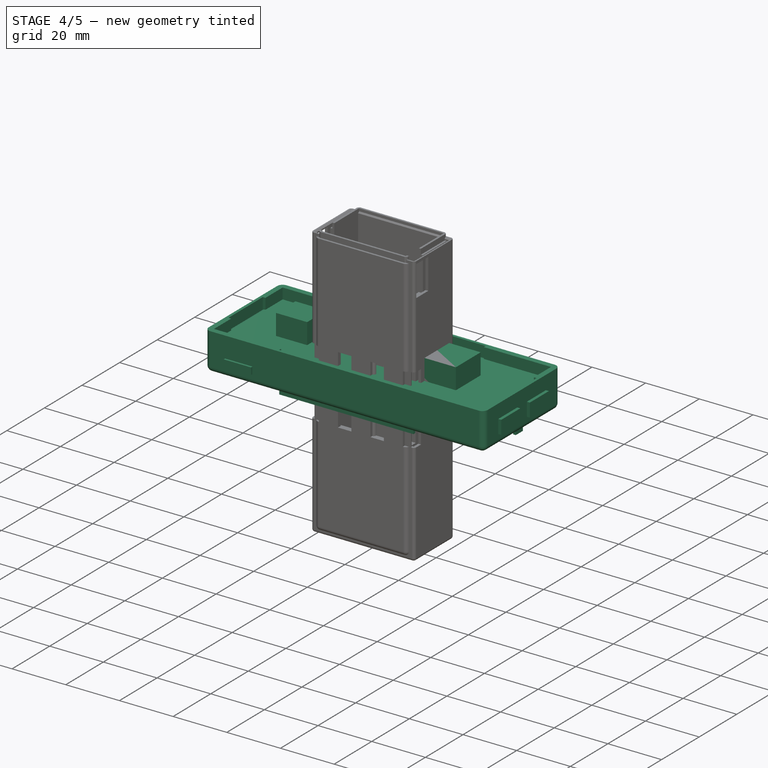
[diagram: stage 4 of 5 — iso view after this stage's code; geometry added in this stage tinted green]
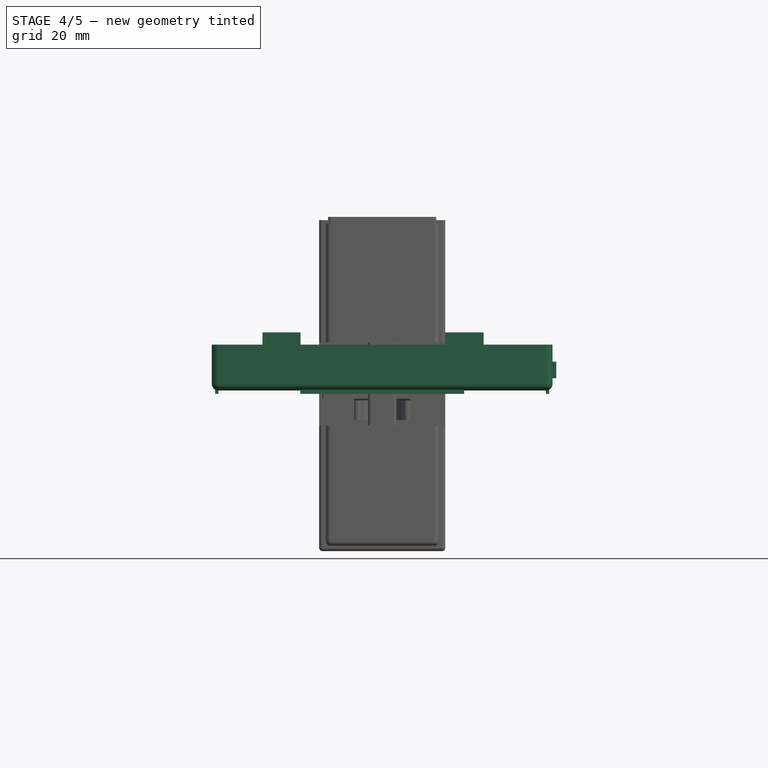
[diagram: stage 4 of 5 — front view after this stage's code; geometry added in this stage tinted green]
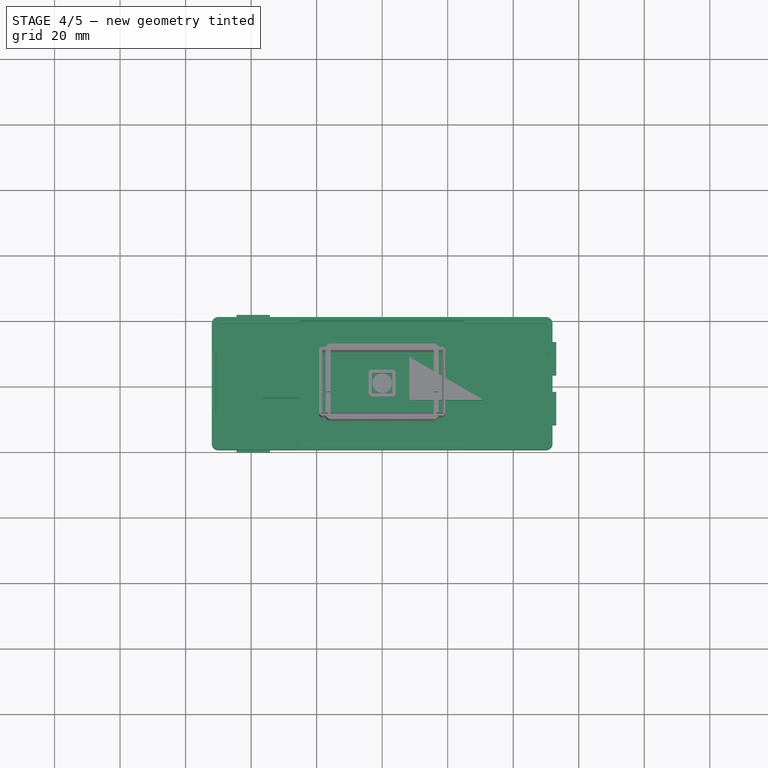
[diagram: stage 4 of 5 — top view after this stage's code; geometry added in this stage tinted green]
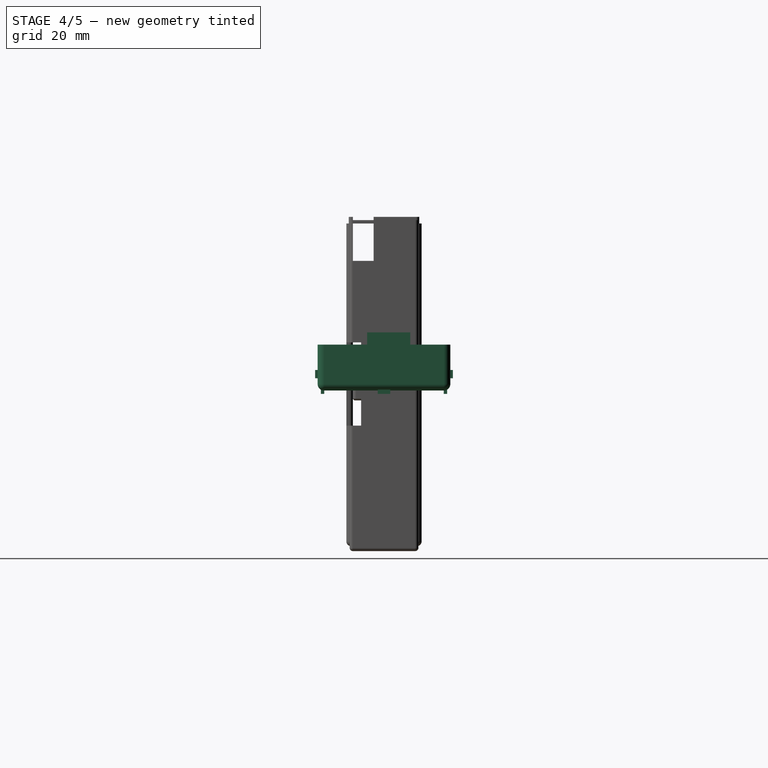
[diagram: stage 4 of 5 — right view after this stage's code; geometry added in this stage tinted green]
FEATURE [Sketcher::SketchObject] Sketch
  MapMode = 5
  Support = -> [XY_Plane]
  sketch-geometry (4):
    g0: LineSegment StartX=-49.535 StartY=17.145 StartZ=0 EndX=49.535 EndY=17.145 EndZ=0
    g1: LineSegment StartX=49.535 StartY=17.145 StartZ=0 EndX=49.535 EndY=-17.145 EndZ=0
    g2: LineSegment StartX=49.535 StartY=-17.145 StartZ=0 EndX=-49.535 EndY=-17.145 EndZ=0
    g3: LineSegment StartX=-49.535 StartY=-17.145 StartZ=0 EndX=-49.535 EndY=17.145 EndZ=0
  constraints (10):
    c: Coincident(g0,g1)
    c: Coincident(g1,g2)
    c: Coincident(g2,g3)
    c: Horizontal(g2)
    c: Vertical(g3)
    c: Distance(g2) = 99.07
    c: Distance(g1) = 34.29
    c: Coincident(g3,g0)
    c: Symmetric(g0,g0,g-2)
    c: Symmetric(g0,g1,g-1)
FEATURE [PartDesign::Pad] Pad  label="PCB_thickness"
  Length = 1.75
  Length2 = 100
  Profile = -> Sketch
  Type = 0
FEATURE [Sketcher::SketchObject] Sketch001
  MapMode = 5
  Support = -> [XY_Plane]
  sketch-geometry (29):
    g0: Circle CenterX=-44.0006 CenterY=12.9981 CenterZ=0 NormalX=0 NormalY=0 NormalZ=1 AngleXU=0 Radius=1.3658
    g1: Circle CenterX=-22.0006 CenterY=12.999 CenterZ=0 NormalX=0 NormalY=0 NormalZ=1 AngleXU=0 Radius=1.3658
    g2: LineSegment [constr] StartX=-44.0006 StartY=12.9981 StartZ=0 EndX=-22.0006 EndY=12.999 EndZ=0
    g3: Circle CenterX=-0.000564675 CenterY=13 CenterZ=0 NormalX=0 NormalY=0 NormalZ=1 AngleXU=0 Radius=1.3658
    g4: LineSegment [constr] StartX=-22.0006 StartY=12.999 StartZ=0 EndX=-0.000564675 EndY=13 EndZ=0
    g5: Circle CenterX=21.9994 CenterY=13.001 CenterZ=0 NormalX=0 NormalY=0 NormalZ=1 AngleXU=0 Radius=1.3658
    g6: LineSegment [constr] StartX=-0.000564675 StartY=13 StartZ=0 EndX=21.9994 EndY=13.001 EndZ=0
    g7: Circle CenterX=43.9994 CenterY=13.0019 CenterZ=0 NormalX=0 NormalY=0 NormalZ=1 AngleXU=0 Radius=1.3658
    g8: LineSegment [constr] StartX=21.9994 StartY=13.001 StartZ=0 EndX=43.9994 EndY=13.0019 EndZ=0
    g9: Circle CenterX=-44 CenterY=-0.00191121 CenterZ=0 NormalX=0 NormalY=0 NormalZ=1 AngleXU=0 Radius=1.3658
    g10: LineSegment [constr] StartX=-44.0006 StartY=12.9981 StartZ=0 EndX=-44 EndY=-0.00191121 EndZ=0
    g11: Circle CenterX=-22 CenterY=-0.000955603 CenterZ=0 NormalX=0 NormalY=0 NormalZ=1 AngleXU=0 Radius=1.3658
    g12: LineSegment [constr] StartX=-44 StartY=-0.00191121 StartZ=0 EndX=-22 EndY=-0.000955603 EndZ=0
    g13: Circle CenterX=0 CenterY=0 CenterZ=0 NormalX=0 NormalY=0 NormalZ=1 AngleXU=0 Radius=1.3658
    g14: LineSegment [constr] StartX=-22 StartY=-0.000955603 StartZ=0 EndX=0 EndY=0 EndZ=0
    g15: Circle CenterX=22 CenterY=0.000955603 CenterZ=0 NormalX=0 NormalY=0 NormalZ=1 AngleXU=0 Radius=1.3658
    g16: LineSegment [constr] StartX=0 StartY=0 StartZ=0 EndX=22 EndY=0.000955603 EndZ=0
    g17: Circle CenterX=44 CenterY=0.00191121 CenterZ=0 NormalX=0 NormalY=0 NormalZ=1 AngleXU=0 Radius=1.3658
    g18: LineSegment [constr] StartX=22 StartY=0.000955603 StartZ=0 EndX=44 EndY=0.00191121 EndZ=0
    g19: Circle CenterX=-43.9994 CenterY=-13.0019 CenterZ=0 NormalX=0 NormalY=0 NormalZ=1 AngleXU=0 Radius=1.3658
    g20: LineSegment [constr] StartX=-44 StartY=-0.00191121 StartZ=0 EndX=-43.9994 EndY=-13.0019 EndZ=0
    g21: Circle CenterX=-21.9994 CenterY=-13.001 CenterZ=0 NormalX=0 NormalY=0 NormalZ=1 AngleXU=0 Radius=1.3658
    g22: LineSegment [constr] StartX=-43.9994 StartY=-13.0019 StartZ=0 EndX=-21.9994 EndY=-13.001 EndZ=0
    g23: Circle CenterX=0.000564675 CenterY=-13 CenterZ=0 NormalX=0 NormalY=0 NormalZ=1 AngleXU=0 Radius=1.3658
    g24: LineSegment [constr] StartX=-21.9994 StartY=-13.001 StartZ=0 EndX=0.000564675 EndY=-13 EndZ=0
    g25: Circle CenterX=22.0006 CenterY=-12.999 CenterZ=0 NormalX=0 NormalY=0 NormalZ=1 AngleXU=0 Radius=1.3658
    g26: LineSegment [constr] StartX=0.000564675 StartY=-13 StartZ=0 EndX=22.0006 EndY=-12.999 EndZ=0
    g27: Circle CenterX=44.0006 CenterY=-12.9981 CenterZ=0 NormalX=0 NormalY=0 NormalZ=1 AngleXU=0 Radius=1.3658
    g28: LineSegment [constr] StartX=22.0006 StartY=-12.999 StartZ=0 EndX=44.0006 EndY=-12.9981 EndZ=0
  constraints (57):
    c: Coincident(g0,g2)
    c: Coincident(g1,g2)
    c: Distance(g2) = 22
    c: Angle(g2) = 4.34365e-05
    c: Coincident(g1,g4)
    c: Coincident(g3,g4)
    c: Equal(g2,g4)
    c: Parallel(g4,g2)
    c: Coincident(g3,g6)
    c: Coincident(g5,g6)
    c: Equal(g2,g6)
    c: Parallel(g6,g2)
    c: Coincident(g5,g8)
    c: Coincident(g7,g8)
    c: Equal(g2,g8)
    c: Parallel(g8,g2)
    c: Coincident(g0,g10)
    c: Coincident(g9,g10)
    c: Distance(g10) = 13
    c: Perpendicular(g10,g2)
    c: Coincident(g9,g12)
    c: Coincident(g11,g12)
    c: Equal(g2,g12)
    c: Parallel(g12,g2)
    c: Coincident(g11,g14)
    c: Coincident(g13,g14)
    c: Equal(g2,g14)
    c: Parallel(g14,g2)
    c: Coincident(g13,g16)
    c: Coincident(g15,g16)
    c: Equal(g2,g16)
    c: Parallel(g16,g2)
    c: Coincident(g15,g18)
    c: Coincident(g17,g18)
    c: Equal(g2,g18)
    c: Parallel(g18,g2)
    c: Coincident(g9,g20)
    c: Coincident(g19,g20)
    c: Equal(g10,g20)
    c: Perpendicular(g20,g2)
    c: Coincident(g19,g22)
    c: Coincident(g21,g22)
    c: Equal(g2,g22)
    c: Parallel(g22,g2)
    c: Coincident(g21,g24)
    c: Coincident(g23,g24)
    c: Equal(g2,g24)
    c: Parallel(g24,g2)
    c: Coincident(g23,g26)
    c: Coincident(g25,g26)
    c: Equal(g2,g26)
    c: Parallel(g26,g2)
    c: Coincident(g25,g28)
    c: Coincident(g27,g28)
    c: Equal(g2,g28)
    c: Parallel(g28,g2)
    c: Coincident(g13,g-1)
FEATURE [PartDesign::Pad] Pad001  label="Feet"
  BaseFeature = -> Pad
  Length = 2
  Length2 = 100
  Profile = -> Sketch001
  Reversed = true
  Type = 0
FEATURE [Sketcher::SketchObject] Sketch002  label="CaseBoxSketch"
  MapMode = 5
  Support = -> [XY_Plane001]
  sketch-geometry (4):
    g0: LineSegment StartX=-50 StartY=18.25 StartZ=0 EndX=50 EndY=18.25 EndZ=0
    g1: LineSegment StartX=50 StartY=18.25 StartZ=0 EndX=50 EndY=-18.25 EndZ=0
    g2: LineSegment StartX=50 StartY=-18.25 StartZ=0 EndX=-50 EndY=-18.25 EndZ=0
    g3: LineSegment StartX=-50 StartY=-18.25 StartZ=0 EndX=-50 EndY=18.25 EndZ=0
  constraints (10):
    c: Coincident(g0,g1)
    c: Coincident(g1,g2)
    c: Coincident(g2,g3)
    c: Coincident(g3,g0)
    c: Horizontal(g0)
    c: Vertical(g3)
    c: Distance(g1) = 36.5  'height'
    c: Distance(g0) = 100  'width'
    c: Symmetric(g2,g1,g-2)
    c: Symmetric(g1,g0,g-1)
FEATURE [PartDesign::Pad] Pad002  label="CaseBox"
  Length = 12
  Length2 = 100
  Profile = -> Sketch002
  Type = 0
FEATURE [PartDesign::Thickness] Thickness
  Base = -> Pad002 [Face6]
  BaseFeature = -> Pad002
  Join = 0
  Mode = 0
  Value = 2
FEATURE [PartDesign::Body] Body003  label="ControllerCase"
  Group = -> [Sketch009,Pad007,Thickness001,Sketch007,Pad008,Sketch008,Pad009,Fillet003,Fillet002]
  Origin = -> Origin003
  Placement = pos=(0,0,-2) rot=(0,0,1;0rad)
  Tip = -> Fillet002
FEATURE [Sketcher::SketchObject] Sketch012
  AttachmentOffset = pos=(0,0,3) rot=(0,0,1;0rad)
  MapMode = 5
  Placement = pos=(0,0,3) rot=(0,0,1;0rad)
  Support = -> [XY_Plane001]
  expr: Constraints[26] = CaseBoxSketch.Constraints.width + 2mm
  expr: Constraints[25] = CaseBoxSketch.Constraints.height + 2mm
  expr: Constraints[13] = CaseBoxSketch.Constraints.height / 2
  expr: Constraints[6] = Sketch002.Constraints.width / 2
  sketch-geometry (12):
    g0: LineSegment StartX=-25 StartY=19.25 StartZ=0 EndX=25 EndY=19.25 EndZ=0
    g1: LineSegment StartX=25 StartY=19.25 StartZ=0 EndX=25 EndY=9.125 EndZ=0
    g2: LineSegment StartX=25 StartY=-19.25 StartZ=0 EndX=-25 EndY=-19.25 EndZ=0
    g3: LineSegment StartX=-25 StartY=-19.25 StartZ=0 EndX=-25 EndY=-9.125 EndZ=0
    g4: LineSegment StartX=-51 StartY=9.125 StartZ=0 EndX=-25 EndY=9.125 EndZ=0
    g5: LineSegment StartX=51 StartY=9.125 StartZ=0 EndX=51 EndY=-9.125 EndZ=0
    g6: LineSegment StartX=51 StartY=-9.125 StartZ=0 EndX=25 EndY=-9.125 EndZ=0
    g7: LineSegment StartX=-51 StartY=-9.125 StartZ=0 EndX=-51 EndY=9.125 EndZ=0
    g8: LineSegment StartX=25 StartY=9.125 StartZ=0 EndX=51 EndY=9.125 EndZ=0
    g9: LineSegment StartX=-25 StartY=9.125 StartZ=0 EndX=-25 EndY=19.25 EndZ=0
    g10: LineSegment StartX=-25 StartY=-9.125 StartZ=0 EndX=-51 EndY=-9.125 EndZ=0
    g11: LineSegment StartX=25 StartY=-9.125 StartZ=0 EndX=25 EndY=-19.25 EndZ=0
  constraints (27):
    c: Coincident(g0,g1)
    c: Coincident(g11,g2)
    c: Coincident(g2,g3)
    c: Coincident(g9,g0)
    c: Symmetric(g0,g0,g-2)
    c: Symmetric(g11,g2,g-2)
    c: Distance(g0) = 50
    c: Coincident(g8,g5)
    c: Coincident(g5,g6)
    c: Coincident(g10,g7)
    c: Coincident(g7,g4)
    c: Horizontal(g4)
    c: Vertical(g7)
    c: Distance(g5) = 18.25
    c: Symmetric(g8,g5,g-1)
    c: Symmetric(g10,g5,g-2)
    c: Symmetric(g0,g11,g-1)
    c: Tangent(g4,g8)
    c: Coincident(g9,g4)
    c: Tangent(g3,g9)
    c: Coincident(g10,g3)
    c: Tangent(g6,g10)
    c: Coincident(g1,g8)
    c: Coincident(g11,g6)
    c: Tangent(g1,g11)
    c: DistanceY(g2,g0) = 38.5
    c: DistanceX(g4,g5) = 102
FEATURE [PartDesign::Pocket] Pocket
  BaseFeature = -> Thickness
  Length = 3
  Length2 = 100
  Profile = -> Sketch012
  Reversed = true
  Type = 1
FEATURE [Sketcher::SketchObject] Sketch013
  AttachmentOffset = pos=(0,0,1.75) rot=(0,0,1;0rad)
  MapMode = 5
  Placement = pos=(0,0,1.75) rot=(0,0,1;0rad)
  Support = -> [XY_Plane]
  expr: AttachmentOffset.Base.z = PCB_thickness.Length
  sketch-geometry (8):
    g0: LineSegment StartX=-36.508 StartY=5.73951 StartZ=0 EndX=-24.9186 EndY=5.73951 EndZ=0
    g1: LineSegment StartX=-24.9186 StartY=5.73951 StartZ=0 EndX=-24.9186 EndY=-4.51855 EndZ=0
    g2: LineSegment StartX=-24.9186 StartY=-4.51855 StartZ=0 EndX=-36.508 EndY=-4.51855 EndZ=0
    g3: LineSegment StartX=-36.508 StartY=-4.51855 StartZ=0 EndX=-36.508 EndY=5.73951 EndZ=0
    g4: LineSegment StartX=8.31951 StartY=8.01724 StartZ=0 EndX=30.9664 EndY=8.01724 EndZ=0
    g5: LineSegment StartX=30.9664 StartY=8.01724 StartZ=0 EndX=30.9664 EndY=-5.16777 EndZ=0
    g6: LineSegment StartX=30.9664 StartY=-5.16777 StartZ=0 EndX=8.31951 EndY=-5.16777 EndZ=0
    g7: LineSegment StartX=8.31951 StartY=-5.16777 StartZ=0 EndX=8.31951 EndY=8.01724 EndZ=0
  constraints (16):
    c: Coincident(g0,g1)
    c: Coincident(g1,g2)
    c: Coincident(g2,g3)
    c: Coincident(g3,g0)
    c: Horizontal(g0)
    c: Horizontal(g2)
    c: Vertical(g1)
    c: Vertical(g3)
    c: Coincident(g4,g5)
    c: Coincident(g5,g6)
    c: Coincident(g6,g7)
    c: Coincident(g7,g4)
    c: Horizontal(g4)
    c: Horizontal(g6)
    c: Vertical(g5)
    c: Vertical(g7)
FEATURE [PartDesign::Pad] Pad010  label="Component_thickness"
  BaseFeature = -> Pad001
  Length = 14
  Length2 = 100
  Profile = -> Sketch013
  Type = 0
FEATURE [Sketcher::SketchObject] Sketch014
  MapMode = 5
  Support = -> [XY_Plane004]
  expr: Constraints[9] = CaseBoxSketch.Constraints.width
  expr: Constraints[8] = CaseBoxSketch.Constraints.height
  sketch-geometry (4):
    g0: LineSegment StartX=-50 StartY=18.25 StartZ=0 EndX=50 EndY=18.25 EndZ=0
    g1: LineSegment StartX=50 StartY=18.25 StartZ=0 EndX=50 EndY=-18.25 EndZ=0
    g2: LineSegment StartX=50 StartY=-18.25 StartZ=0 EndX=-50 EndY=-18.25 EndZ=0
    g3: LineSegment StartX=-50 StartY=-18.25 StartZ=0 EndX=-50 EndY=18.25 EndZ=0
  constraints (10):
    c: Coincident(g0,g1)
    c: Coincident(g1,g2)
    c: Coincident(g2,g3)
    c: Coincident(g3,g0)
    c: Horizontal(g2)
    c: Vertical(g3)
    c: Symmetric(g0,g0,g-2)
    c: Symmetric(g0,g1,g-1)
    c: Distance(g1) = 36.5
    c: Distance(g0) = 100
FEATURE [PartDesign::Pad] Pad011
  Length = 6
  Length2 = 100
  Profile = -> Sketch014
  Type = 0
  expr: Length = Component_thickness.Length - 8mm
FEATURE [PartDesign::Thickness] Thickness002
  Base = -> Pad011 [Face5]
  BaseFeature = -> Pad011
  Join = 0
  Mode = 0
  Value = 2
FEATURE [Sketcher::SketchObject] Sketch015
  MapMode = 5
  Support = -> [XY_Plane004]
  expr: Constraints[35] = CaseBoxSketch.Constraints.height / 2
  expr: Constraints[33] = CaseBoxSketch.Constraints.height
  expr: Constraints[34] = CaseBoxSketch.Constraints.width / 2
  expr: Constraints[30] = CaseBoxSketch.Constraints.width
  sketch-geometry (17):
    g0: LineSegment StartX=-25 StartY=-18.25 StartZ=0 EndX=25 EndY=-18.25 EndZ=0
    g1: LineSegment StartX=25 StartY=-18.25 StartZ=0 EndX=25 EndY=-19.25 EndZ=0
    g2: LineSegment StartX=25 StartY=-19.25 StartZ=0 EndX=-25 EndY=-19.25 EndZ=0
    g3: LineSegment StartX=-25 StartY=-19.25 StartZ=0 EndX=-25 EndY=-18.25 EndZ=0
    g4: LineSegment StartX=51 StartY=-1.89109 StartZ=0 EndX=50 EndY=-1.89109 EndZ=0
    g5: LineSegment StartX=50 StartY=-1.89109 StartZ=0 EndX=50 EndY=1.89109 EndZ=0
    g6: LineSegment StartX=50 StartY=1.89109 StartZ=0 EndX=51 EndY=1.89109 EndZ=0
    g7: LineSegment StartX=51 StartY=1.89109 StartZ=0 EndX=51 EndY=-1.89109 EndZ=0
    g8: LineSegment StartX=25 StartY=18.25 StartZ=0 EndX=-25 EndY=18.25 EndZ=0
    g9: LineSegment StartX=-25 StartY=18.25 StartZ=0 EndX=-25 EndY=19.25 EndZ=0
    g10: LineSegment StartX=-25 StartY=19.25 StartZ=0 EndX=25 EndY=19.25 EndZ=0
    g11: LineSegment StartX=25 StartY=19.25 StartZ=0 EndX=25 EndY=18.25 EndZ=0
    g12: LineSegment StartX=-50 StartY=-9.12513 StartZ=0 EndX=-51 EndY=-9.12487 EndZ=0
    g13: LineSegment StartX=-51 StartY=-9.12487 StartZ=0 EndX=-51 EndY=9.12513 EndZ=0
    g14: LineSegment StartX=-51 StartY=9.12513 StartZ=0 EndX=-50 EndY=9.12513 EndZ=0
    g15: LineSegment StartX=-50 StartY=9.12513 StartZ=0 EndX=-50 EndY=-9.12513 EndZ=0
    g16: GeomPoint X=-50 Y=1.89109 Z=0
  constraints (41):
    c: Coincident(g0,g1)
    c: Coincident(g1,g2)
    c: Coincident(g2,g3)
    c: Coincident(g3,g0)
    c: Horizontal(g2)
    c: Vertical(g1)
    c: Vertical(g3)
    c: Coincident(g4,g5)
    c: Coincident(g5,g6)
    c: Coincident(g6,g7)
    c: Coincident(g7,g4)
    c: Horizontal(g4)
    c: Horizontal(g6)
    c: Coincident(g8,g9)
    c: Coincident(g9,g10)
    c: Coincident(g10,g11)
    c: Coincident(g11,g8)
    c: Horizontal(g10)
    c: Vertical(g11)
    c: Coincident(g12,g13)
    c: Coincident(g13,g14)
    c: Coincident(g14,g15)
    c: Coincident(g15,g12)
    c: Horizontal(g14)
    c: Vertical(g13)
    c: Symmetric(g0,g0,g-2)
    c: Symmetric(g0,g8,g-1)
    c: Symmetric(g8,g0,g-1)
    c: Symmetric(g2,g9,g-1)
    c: Symmetric(g14,g12,g-1)
    c: DistanceX(g14,g5) = 100
    c: Distance(g14) = 1
    c: Equal(g11,g6)
    c: DistanceY(g0,g8) = 36.5
    c: Distance(g0) = 50
    c: Distance(g13) = 18.25
    c: Vertical(g5)
    c: Distance(g11) = 1
    c: Symmetric(g6,g4,g-1)
    c: PointOnObject(g16,g15)
    c: Symmetric(g16,g5,g-2)
FEATURE [PartDesign::Pad] Pad012
  BaseFeature = -> Thickness002
  Length = 3
  Length2 = 100
  Profile = -> Sketch015
  Reversed = true
  Type = 0
FEATURE [Sketcher::SketchObject] Sketch016
  AttachmentOffset = pos=(0,0,1.75) rot=(0,0,1;0rad)
  MapMode = 5
  Placement = pos=(0,0,1.75) rot=(0,0,1;0rad)
  Support = -> [XY_Plane]
  expr: AttachmentOffset.Base.z = PCB_thickness.Length
  expr: Constraints[8] = 2.54 * 4
  sketch-geometry (10):
    g0: LineSegment StartX=43.359 StartY=12.7 StartZ=0 EndX=53.1177 EndY=12.7 EndZ=0
    g1: LineSegment StartX=53.1177 StartY=12.7 StartZ=0 EndX=53.1177 EndY=2.54 EndZ=0
    g2: LineSegment StartX=53.1177 StartY=2.54 StartZ=0 EndX=43.359 EndY=2.54 EndZ=0
    g3: LineSegment StartX=43.359 StartY=2.54 StartZ=0 EndX=43.359 EndY=12.7 EndZ=0
    g4: LineSegment [constr] StartX=45.899 StartY=12.7 StartZ=0 EndX=45.899 EndY=7.62 EndZ=0
    g5: LineSegment [constr] StartX=45.899 StartY=7.62 StartZ=0 EndX=45.899 EndY=2.54 EndZ=0
    g6: LineSegment StartX=43.359 StartY=-12.7 StartZ=0 EndX=53.1177 EndY=-12.7 EndZ=0
    g7: LineSegment StartX=43.359 StartY=-2.54 StartZ=0 EndX=43.359 EndY=-12.7 EndZ=0
    g8: LineSegment StartX=53.1177 StartY=-2.54 StartZ=0 EndX=43.359 EndY=-2.54 EndZ=0
    g9: LineSegment StartX=53.1177 StartY=-12.7 StartZ=0 EndX=53.1177 EndY=-2.54 EndZ=0
  constraints (28):
    c: Coincident(g0,g1)
    c: Coincident(g1,g2)
    c: Coincident(g2,g3)
    c: Coincident(g3,g0)
    c: Horizontal(g0)
    c: Horizontal(g2)
    c: Vertical(g1)
    c: Vertical(g3)
    c: Distance(g1) = 10.16
    c: PointOnObject(g4,g0)
    c: Coincident(g5,g4)
    c: PointOnObject(g5,g2)
    c: Vertical(g5)
    c: Equal(g5,g4)
    c: DistanceX(g4) = 45.899
    c: DistanceY(g4) = 7.62
    c: Distance(g4,g0) = 2.54
    c: Vertical(g4)
    c: Coincident(g6,g9)
    c: Coincident(g9,g8)
    c: Coincident(g8,g7)
    c: Coincident(g7,g6)
    c: Horizontal(g6)
    c: Horizontal(g8)
    c: Vertical(g9)
    c: Symmetric(g7,g2,g-1)
    c: Symmetric(g6,g0,g-1)
    c: Equal(g8,g2)
FEATURE [PartDesign::Pad] Pad013
  BaseFeature = -> Pad010
  Length = 5.08
  Length2 = 100
  Profile = -> Sketch016
  Type = 0
FEATURE [Sketcher::SketchObject] Sketch017
  AttachmentOffset = pos=(0,0,1.75) rot=(0,0,1;0rad)
  MapMode = 5
  Placement = pos=(0,0,1.75) rot=(0,0,1;0rad)
  Support = -> [XY_Plane]
  expr: AttachmentOffset.Base.z = PCB_thickness.Length
  expr: Constraints[8] = 2.54 * 4
  sketch-geometry (10):
    g0: LineSegment StartX=-44.452 StartY=21.0237 StartZ=0 EndX=-34.292 EndY=21.0237 EndZ=0
    g1: LineSegment StartX=-34.292 StartY=21.0237 StartZ=0 EndX=-34.292 EndY=13.971 EndZ=0
    g2: LineSegment StartX=-34.292 StartY=13.971 StartZ=0 EndX=-44.452 EndY=13.971 EndZ=0
    g3: LineSegment StartX=-44.452 StartY=13.971 StartZ=0 EndX=-44.452 EndY=21.0237 EndZ=0
    g4: LineSegment [constr] StartX=-44.452 StartY=15.241 StartZ=0 EndX=-39.372 EndY=15.241 EndZ=0
    g5: LineSegment [constr] StartX=-39.372 StartY=15.241 StartZ=0 EndX=-34.292 EndY=15.241 EndZ=0
    g6: LineSegment StartX=-44.452 StartY=-21.0237 StartZ=0 EndX=-34.292 EndY=-21.0237 EndZ=0
    g7: LineSegment StartX=-34.292 StartY=-21.0237 StartZ=0 EndX=-34.292 EndY=-13.971 EndZ=0
    g8: LineSegment StartX=-34.292 StartY=-13.971 StartZ=0 EndX=-44.452 EndY=-13.971 EndZ=0
    g9: LineSegment StartX=-44.452 StartY=-13.971 StartZ=0 EndX=-44.452 EndY=-21.0237 EndZ=0
  constraints (28):
    c: Coincident(g0,g1)
    c: Coincident(g1,g2)
    c: Coincident(g2,g3)
    c: Coincident(g3,g0)
    c: Horizontal(g0)
    c: Horizontal(g2)
    c: Vertical(g1)
    c: Vertical(g3)
    c: Distance(g0) = 10.16
    c: PointOnObject(g4,g3)
    c: Horizontal(g4)
    c: Coincident(g4,g5)
    c: PointOnObject(g5,g1)
    c: Horizontal(g5)
    c: Equal(g5,g4)
    c: DistanceX(g4) = -39.372
    c: DistanceY(g4) = 15.241
    c: DistanceY(g1,g5) = 1.27
    c: Coincident(g6,g7)
    c: Coincident(g7,g8)
    c: Coincident(g8,g9)
    c: Coincident(g9,g6)
    c: Horizontal(g6)
    c: Horizontal(g8)
    c: Vertical(g7)
    c: Vertical(g9)
    c: Symmetric(g7,g1,g-1)
    c: Symmetric(g6,g0,g-1)
FEATURE [PartDesign::Pad] Pad014
  BaseFeature = -> Pad013
  Length = 2.54
  Length2 = 100
  Profile = -> Sketch017
  Type = 0
FEATURE [PartDesign::Body] Body001  label="DriverCase"
  Group = -> [Sketch002,Pad002,Thickness,Sketch003,Sketch012,Pocket,Sketch018,ShapeBinder,Pocket001,Sketch019,Pocket002,Pad003,Fillet]
  Origin = -> Origin001
  Placement = pos=(0,0,-2) rot=(0,0,1;0rad)
  Tip = -> Fillet
FEATURE [PartDesign::Fillet] Fillet004
  Base = -> Pad012 [Face6]
  BaseFeature = -> Pad012
  Radius = 1.5
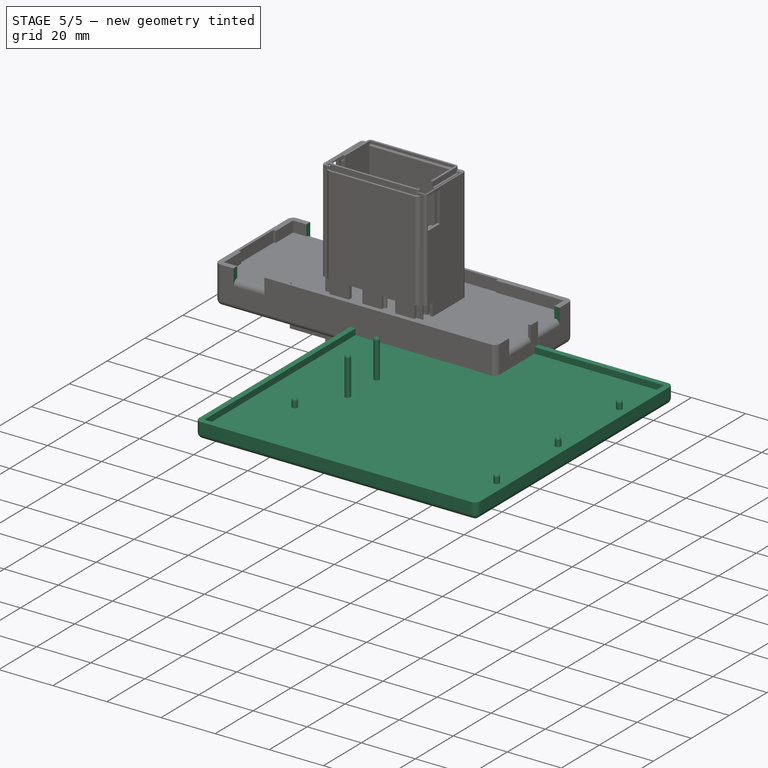
[diagram: stage 5 of 5 — iso view after this stage's code; geometry added in this stage tinted green]
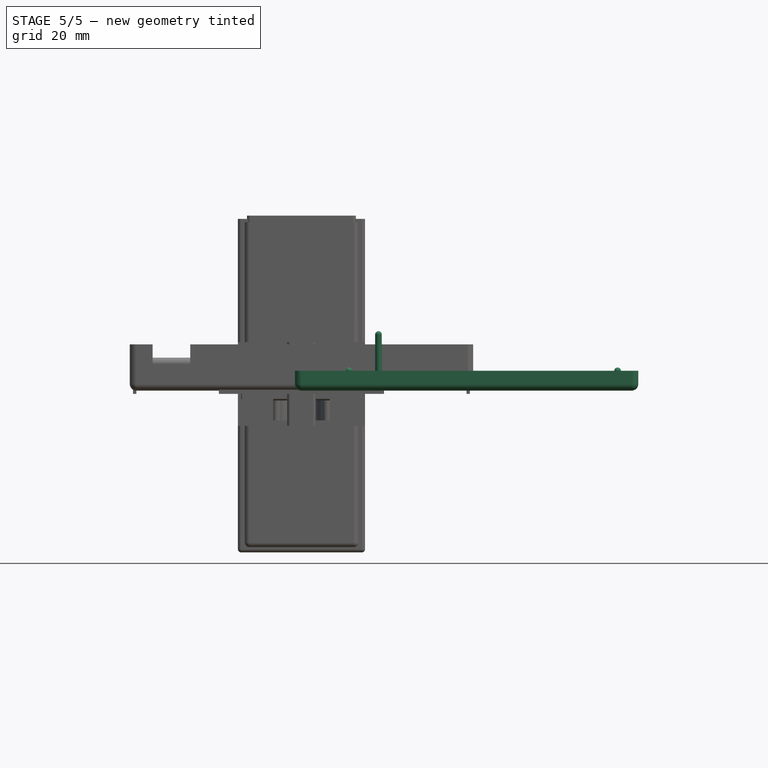
[diagram: stage 5 of 5 — front view after this stage's code; geometry added in this stage tinted green]
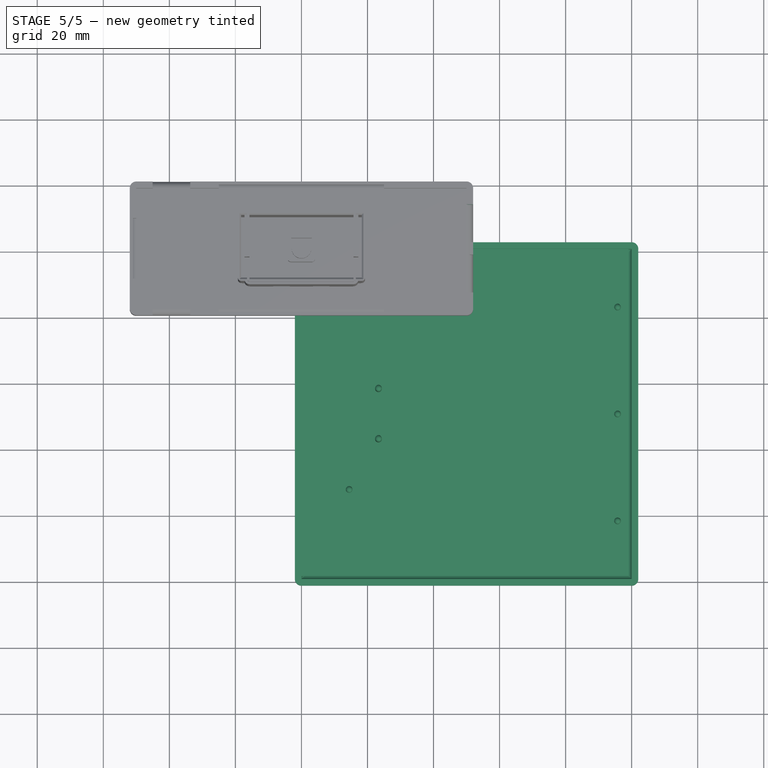
[diagram: stage 5 of 5 — top view after this stage's code; geometry added in this stage tinted green]
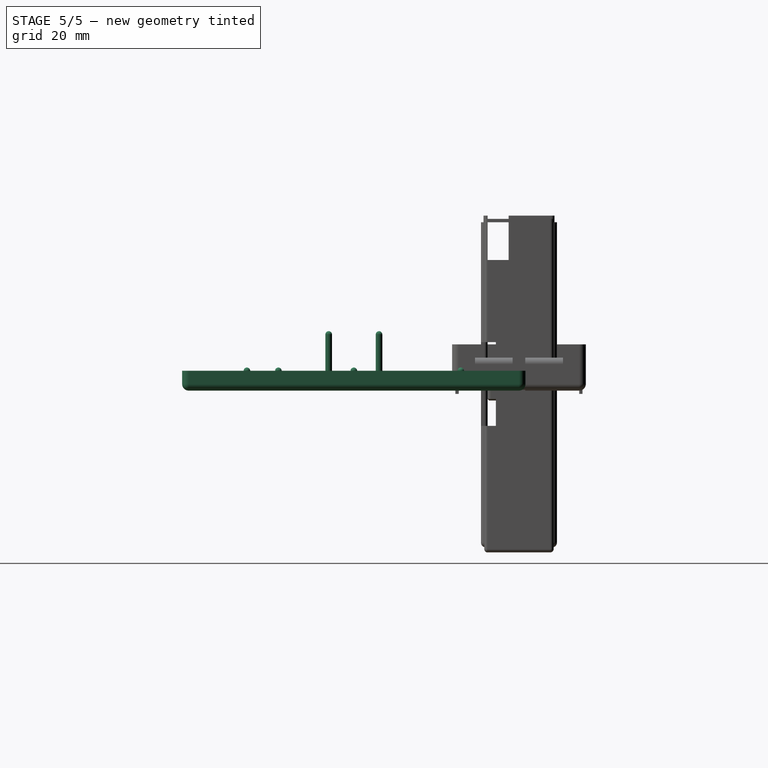
[diagram: stage 5 of 5 — right view after this stage's code; geometry added in this stage tinted green]
FEATURE [Sketcher::SketchObject] Sketch003
  MapMode = 5
  Support = -> [XY_Plane001]
  expr: Constraints[3] = 9.526
  sketch-geometry (2):
    g0: Circle CenterX=-35.562 CenterY=9.526 CenterZ=0 NormalX=0 NormalY=0 NormalZ=1 AngleXU=0 Radius=1
    g1: Circle CenterX=45.722 CenterY=0 CenterZ=0 NormalX=0 NormalY=0 NormalZ=1 AngleXU=0 Radius=1
  constraints (6):
    c: Equal(g0,g1)
    c: Radius(g0) = 1
    c: DistanceX(g0) = -35.562
    c: DistanceY(g0) = 9.526
    c: DistanceX(g1) = 45.722
    c: PointOnObject(g1,g-1)
FEATURE [Sketcher::SketchObject] Sketch005
  MapMode = 5
  Support = -> [XY_Plane002]
  expr: Constraints[4] = 2.54 * 8.75
  sketch-geometry (49):
    g0: Circle CenterX=5.08 CenterY=-5.08 CenterZ=0 NormalX=0 NormalY=0 NormalZ=1 AngleXU=0 Radius=1.27
    g1: Circle CenterX=27.305 CenterY=-5.08 CenterZ=0 NormalX=0 NormalY=0 NormalZ=1 AngleXU=0 Radius=1.27
    g2: LineSegment [constr] StartX=5.08 StartY=-5.08 StartZ=0 EndX=27.305 EndY=-5.08 EndZ=0
    g3: Circle CenterX=49.53 CenterY=-5.08 CenterZ=0 NormalX=0 NormalY=0 NormalZ=1 AngleXU=0 Radius=1.27
    g4: LineSegment [constr] StartX=27.305 StartY=-5.08 StartZ=0 EndX=49.53 EndY=-5.08 EndZ=0
    g5: Circle CenterX=71.755 CenterY=-5.08 CenterZ=0 NormalX=0 NormalY=0 NormalZ=1 AngleXU=0 Radius=1.27
    g6: LineSegment [constr] StartX=49.53 StartY=-5.08 StartZ=0 EndX=71.755 EndY=-5.08 EndZ=0
    g7: Circle CenterX=93.98 CenterY=-5.08 CenterZ=0 NormalX=0 NormalY=0 NormalZ=1 AngleXU=0 Radius=1.27
    g8: LineSegment [constr] StartX=71.755 StartY=-5.08 StartZ=0 EndX=93.98 EndY=-5.08 EndZ=0
    g9: Circle CenterX=5.08 CenterY=-27.305 CenterZ=0 NormalX=0 NormalY=0 NormalZ=1 AngleXU=0 Radius=1.27
    g10: LineSegment [constr] StartX=5.08 StartY=-5.08 StartZ=0 EndX=5.08 EndY=-27.305 EndZ=0
    g11: Circle CenterX=27.305 CenterY=-27.305 CenterZ=0 NormalX=0 NormalY=0 NormalZ=1 AngleXU=0 Radius=1.27
    g12: LineSegment [constr] StartX=5.08 StartY=-27.305 StartZ=0 EndX=27.305 EndY=-27.305 EndZ=0
    g13: Circle CenterX=49.53 CenterY=-27.305 CenterZ=0 NormalX=0 NormalY=0 NormalZ=1 AngleXU=0 Radius=1.27
    g14: LineSegment [constr] StartX=27.305 StartY=-27.305 StartZ=0 EndX=49.53 EndY=-27.305 EndZ=0
    g15: Circle CenterX=71.755 CenterY=-27.305 CenterZ=0 NormalX=0 NormalY=0 NormalZ=1 AngleXU=0 Radius=1.27
    g16: LineSegment [constr] StartX=49.53 StartY=-27.305 StartZ=0 EndX=71.755 EndY=-27.305 EndZ=0
    g17: Circle CenterX=93.98 CenterY=-27.305 CenterZ=0 NormalX=0 NormalY=0 NormalZ=1 AngleXU=0 Radius=1.27
    g18: LineSegment [constr] StartX=71.755 StartY=-27.305 StartZ=0 EndX=93.98 EndY=-27.305 EndZ=0
    g19: Circle CenterX=5.08 CenterY=-49.53 CenterZ=0 NormalX=0 NormalY=0 NormalZ=1 AngleXU=0 Radius=1.27
    g20: LineSegment [constr] StartX=5.08 StartY=-27.305 StartZ=0 EndX=5.08 EndY=-49.53 EndZ=0
    g21: Circle CenterX=27.305 CenterY=-49.53 CenterZ=0 NormalX=0 NormalY=0 NormalZ=1 AngleXU=0 Radius=1.27
    g22: LineSegment [constr] StartX=5.08 StartY=-49.53 StartZ=0 EndX=27.305 EndY=-49.53 EndZ=0
    g23: Circle CenterX=49.53 CenterY=-49.53 CenterZ=0 NormalX=0 NormalY=0 NormalZ=1 AngleXU=0 Radius=1.27
    g24: LineSegment [constr] StartX=27.305 StartY=-49.53 StartZ=0 EndX=49.53 EndY=-49.53 EndZ=0
    g25: Circle CenterX=71.755 CenterY=-49.53 CenterZ=0 NormalX=0 NormalY=0 NormalZ=1 AngleXU=0 Radius=1.27
    g26: LineSegment [constr] StartX=49.53 StartY=-49.53 StartZ=0 EndX=71.755 EndY=-49.53 EndZ=0
    g27: Circle CenterX=93.98 CenterY=-49.53 CenterZ=0 NormalX=0 NormalY=0 NormalZ=1 AngleXU=0 Radius=1.27
    g28: LineSegment [constr] StartX=71.755 StartY=-49.53 StartZ=0 EndX=93.98 EndY=-49.53 EndZ=0
    g29: Circle CenterX=5.08 CenterY=-71.755 CenterZ=0 NormalX=0 NormalY=0 NormalZ=1 AngleXU=0 Radius=1.27
    g30: LineSegment [constr] StartX=5.08 StartY=-49.53 StartZ=0 EndX=5.08 EndY=-71.755 EndZ=0
    g31: Circle CenterX=27.305 CenterY=-71.755 CenterZ=0 NormalX=0 NormalY=0 NormalZ=1 AngleXU=0 Radius=1.27
    g32: LineSegment [constr] StartX=5.08 StartY=-71.755 StartZ=0 EndX=27.305 EndY=-71.755 EndZ=0
    g33: Circle CenterX=49.53 CenterY=-71.755 CenterZ=0 NormalX=0 NormalY=0 NormalZ=1 AngleXU=0 Radius=1.27
    g34: LineSegment [constr] StartX=27.305 StartY=-71.755 StartZ=0 EndX=49.53 EndY=-71.755 EndZ=0
    g35: Circle CenterX=71.755 CenterY=-71.755 CenterZ=0 NormalX=0 NormalY=0 NormalZ=1 AngleXU=0 Radius=1.27
    g36: LineSegment [constr] StartX=49.53 StartY=-71.755 StartZ=0 EndX=71.755 EndY=-71.755 EndZ=0
    g37: Circle CenterX=93.98 CenterY=-71.755 CenterZ=0 NormalX=0 NormalY=0 NormalZ=1 AngleXU=0 Radius=1.27
    g38: LineSegment [constr] StartX=71.755 StartY=-71.755 StartZ=0 EndX=93.98 EndY=-71.755 EndZ=0
    g39: Circle CenterX=5.08 CenterY=-93.98 CenterZ=0 NormalX=0 NormalY=0 NormalZ=1 AngleXU=0 Radius=1.27
    g40: LineSegment [constr] StartX=5.08 StartY=-71.755 StartZ=0 EndX=5.08 EndY=-93.98 EndZ=0
    g41: Circle CenterX=27.305 CenterY=-93.98 CenterZ=0 NormalX=0 NormalY=0 NormalZ=1 AngleXU=0 Radius=1.27
    g42: LineSegment [constr] StartX=5.08 StartY=-93.98 StartZ=0 EndX=27.305 EndY=-93.98 EndZ=0
    g43: Circle CenterX=49.53 CenterY=-93.98 CenterZ=0 NormalX=0 NormalY=0 NormalZ=1 AngleXU=0 Radius=1.27
    g44: LineSegment [constr] StartX=27.305 StartY=-93.98 StartZ=0 EndX=49.53 EndY=-93.98 EndZ=0
    g45: Circle CenterX=71.755 CenterY=-93.98 CenterZ=0 NormalX=0 NormalY=0 NormalZ=1 AngleXU=0 Radius=1.27
    g46: LineSegment [constr] StartX=49.53 StartY=-93.98 StartZ=0 EndX=71.755 EndY=-93.98 EndZ=0
    g47: Circle CenterX=93.98 CenterY=-93.98 CenterZ=0 NormalX=0 NormalY=0 NormalZ=1 AngleXU=0 Radius=1.27
    g48: LineSegment [constr] StartX=71.755 StartY=-93.98 StartZ=0 EndX=93.98 EndY=-93.98 EndZ=0
  constraints (123):
    c: Radius(g0) = 1.27
    c: Equal(g0,g1) = 1.27
    c: Coincident(g0,g2)
    c: Coincident(g1,g2)
    c: Distance(g2) = 22.225
    c: Angle(g2) = 0
    c: Equal(g0,g3) = 1.27
    c: Coincident(g1,g4)
    c: Coincident(g3,g4)
    c: Equal(g2,g4)
    c: Parallel(g4,g2)
    c: Equal(g0,g5) = 1.27
    c: Coincident(g3,g6)
    c: Coincident(g5,g6)
    c: Equal(g2,g6)
    c: Parallel(g6,g2)
    c: Equal(g0,g7) = 1.27
    c: Coincident(g5,g8)
    c: Coincident(g7,g8)
    c: Equal(g2,g8)
    c: Parallel(g8,g2)
    c: Equal(g0,g9) = 1.27
    c: Coincident(g0,g10)
    c: Coincident(g9,g10)
    c: Equal(g10,g2)
    c: Perpendicular(g10,g2)
    c: Equal(g0,g11) = 1.27
    c: Coincident(g9,g12)
    c: Coincident(g11,g12)
    c: Equal(g2,g12)
    c: Parallel(g12,g2)
    c: Equal(g0,g13) = 1.27
    c: Coincident(g11,g14)
    c: Coincident(g13,g14)
    c: Equal(g2,g14)
    c: Parallel(g14,g2)
    c: Equal(g0,g15) = 1.27
    c: Coincident(g13,g16)
    c: Coincident(g15,g16)
    c: Equal(g2,g16)
    c: Parallel(g16,g2)
    c: Equal(g0,g17) = 1.27
    c: Coincident(g15,g18)
    c: Coincident(g17,g18)
    c: Equal(g2,g18)
    c: Parallel(g18,g2)
    c: Equal(g0,g19) = 1.27
    c: Coincident(g9,g20)
    c: Coincident(g19,g20)
    c: Equal(g10,g20)
    c: Perpendicular(g20,g2)
    c: Equal(g0,g21) = 1.27
    c: Coincident(g19,g22)
    c: Coincident(g21,g22)
    c: Equal(g2,g22)
    c: Parallel(g22,g2)
    c: Equal(g0,g23) = 1.27
    c: Coincident(g21,g24)
    c: Coincident(g23,g24)
    c: Equal(g2,g24)
    c: Parallel(g24,g2)
    c: Equal(g0,g25) = 1.27
    c: Coincident(g23,g26)
    c: Coincident(g25,g26)
    c: Equal(g2,g26)
    c: Parallel(g26,g2)
    c: Equal(g0,g27) = 1.27
    c: Coincident(g25,g28)
    c: Coincident(g27,g28)
    c: Equal(g2,g28)
    c: Parallel(g28,g2)
    c: Equal(g0,g29) = 1.27
    c: Coincident(g19,g30)
    c: Coincident(g29,g30)
    c: Equal(g10,g30)
    c: Perpendicular(g30,g2)
    c: Equal(g0,g31) = 1.27
    c: Coincident(g29,g32)
    c: Coincident(g31,g32)
    c: Equal(g2,g32)
    c: Parallel(g32,g2)
    c: Equal(g0,g33) = 1.27
    c: Coincident(g31,g34)
    c: Coincident(g33,g34)
    c: Equal(g2,g34)
    c: Parallel(g34,g2)
    c: Equal(g0,g35) = 1.27
    c: Coincident(g33,g36)
    c: Coincident(g35,g36)
    c: Equal(g2,g36)
    c: Parallel(g36,g2)
    c: Equal(g0,g37) = 1.27
    c: Coincident(g35,g38)
    c: Coincident(g37,g38)
    c: Equal(g2,g38)
    c: Parallel(g38,g2)
    c: Equal(g0,g39) = 1.27
    c: Coincident(g29,g40)
    c: Coincident(g39,g40)
    c: Equal(g10,g40)
    c: Perpendicular(g40,g2)
    c: Equal(g0,g41) = 1.27
    c: Coincident(g39,g42)
    c: Coincident(g41,g42)
    c: Equal(g2,g42)
    c: Parallel(g42,g2)
    c: Equal(g0,g43) = 1.27
    c: Coincident(g41,g44)
    c: Coincident(g43,g44)
    c: Equal(g2,g44)
    c: Parallel(g44,g2)
    c: Equal(g0,g45) = 1.27
    c: Coincident(g43,g46)
    c: Coincident(g45,g46)
    c: Equal(g2,g46)
    c: Parallel(g46,g2)
    c: Equal(g0,g47) = 1.27
    c: Coincident(g45,g48)
    c: Coincident(g47,g48)
    c: Equal(g2,g48)
    c: Parallel(g48,g2)
    c: DistanceX(g0) = 5.08
    c: DistanceY(g0) = -5.08
FEATURE [Sketcher::SketchObject] Sketch006
  MapMode = 5
  Support = -> [XY_Plane002]
  sketch-geometry (4):
    g0: LineSegment StartX=0 StartY=-99.067 StartZ=0 EndX=99.067 EndY=-99.067 EndZ=0
    g1: LineSegment StartX=99.067 StartY=-99.067 StartZ=0 EndX=99.067 EndY=0 EndZ=0
    g2: LineSegment StartX=99.067 StartY=0 StartZ=0 EndX=0 EndY=0 EndZ=0
    g3: LineSegment StartX=0 StartY=0 StartZ=0 EndX=0 EndY=-99.067 EndZ=0
  constraints (11):
    c: Coincident(g0,g1)
    c: Coincident(g1,g2)
    c: Coincident(g2,g3)
    c: Coincident(g3,g0)
    c: Horizontal(g0)
    c: Horizontal(g2)
    c: Vertical(g1)
    c: Vertical(g3)
    c: Distance(g2) = 99.067
    c: Distance(g1) = 99.067
    c: Coincident(g2,g-1)
FEATURE [PartDesign::Pad] Pad006
  Length = 1.75
  Length2 = 100
  Profile = -> Sketch006
  Type = 0
FEATURE [PartDesign::Pad] Pad005
  BaseFeature = -> Pad006
  Length = 2
  Length2 = 100
  Profile = -> Sketch005
  Reversed = true
  Type = 0
FEATURE [PartDesign::Body] Body002  label="ControllerPCB"
  Group = -> [Sketch006,Pad006,Sketch005,Pad005]
  Origin = -> Origin002
  Tip = -> Pad005
FEATURE [Sketcher::SketchObject] Sketch007
  MapMode = 5
  Support = -> [XY_Plane003]
  sketch-geometry (9):
    g0: Circle CenterX=14.438 CenterY=-8.087 CenterZ=0 NormalX=0 NormalY=0 NormalZ=1 AngleXU=0 Radius=1
    g1: Circle CenterX=95.723 CenterY=-17.613 CenterZ=0 NormalX=0 NormalY=0 NormalZ=1 AngleXU=0 Radius=1
    g2: Circle CenterX=95.723 CenterY=-50 CenterZ=0 NormalX=0 NormalY=0 NormalZ=1 AngleXU=0 Radius=1
    g3: Circle CenterX=95.723 CenterY=-82.387 CenterZ=0 NormalX=0 NormalY=0 NormalZ=1 AngleXU=0 Radius=1
    g4: Circle CenterX=14.438 CenterY=-72.861 CenterZ=0 NormalX=0 NormalY=0 NormalZ=1 AngleXU=0 Radius=1
    g5: LineSegment [constr] StartX=0 StartY=-50 StartZ=0 EndX=50 EndY=-50 EndZ=0
    g6: LineSegment [constr] StartX=50 StartY=-50 StartZ=0 EndX=100 EndY=-50 EndZ=0
    g7: LineSegment [constr] StartX=50 StartY=0 StartZ=0 EndX=50 EndY=-50 EndZ=0
    g8: LineSegment [constr] StartX=50 StartY=-50 StartZ=0 EndX=50 EndY=-100 EndZ=0
  constraints (25):
    c: Equal(g0,g1)
    c: Equal(g4,g3)
    c: PointOnObject(g5,g-2)
    c: Horizontal(g5)
    c: Coincident(g5,g6)
    c: Horizontal(g6)
    c: PointOnObject(g7,g-1)
    c: Coincident(g7,g5)
    c: Vertical(g7)
    c: Coincident(g7,g8)
    c: Vertical(g8)
    c: Equal(g8,g7)
    c: Equal(g7,g5)
    c: Equal(g5,g6)
    c: DistanceX(g5,g6) = 100
    c: DistanceX(g0,g5) = 35.562
    c: Vertical(g4,g0)
    c: Vertical(g1,g2)
    c: Symmetric(g3,g1,g6)
    c: PointOnObject(g2,g6)
    c: DistanceY(g5,g0) = 41.913
    c: DistanceY(g4,g5) = 22.861
    c: DistanceY(g5,g1) = 32.387
    c: DistanceX(g5,g2) = 45.723
    c: Radius(g0) = 1
FEATURE [Sketcher::SketchObject] Sketch008
  MapMode = 5
  Support = -> [XY_Plane003]
  sketch-geometry (4):
    g0: GeomPoint X=50 Y=-50 Z=0
    g1: Circle CenterX=23.328 CenterY=-42.38 CenterZ=0 NormalX=0 NormalY=0 NormalZ=1 AngleXU=0 Radius=1
    g2: Circle CenterX=23.328 CenterY=-57.62 CenterZ=0 NormalX=0 NormalY=0 NormalZ=1 AngleXU=0 Radius=1
    g3: LineSegment [constr] StartX=50 StartY=-50 StartZ=0 EndX=0 EndY=-50 EndZ=0
  constraints (10):
    c: DistanceX(g0) = 50
    c: DistanceY(g0) = -50
    c: Equal(g2,g1)
    c: Coincident(g3,g0)
    c: PointOnObject(g3,g-2)
    c: Horizontal(g3)
    c: Symmetric(g1,g2,g3)
    c: Radius(g2) = 1
    c: DistanceX(g1,g0) = 26.672
    c: DistanceY(g0,g1) = 7.62
FEATURE [Sketcher::SketchObject] Sketch009
  MapMode = 5
  Support = -> [XY_Plane003]
  sketch-geometry (4):
    g0: LineSegment StartX=0 StartY=0 StartZ=0 EndX=100 EndY=0 EndZ=0
    g1: LineSegment StartX=100 StartY=0 StartZ=0 EndX=100 EndY=-100 EndZ=0
    g2: LineSegment StartX=100 StartY=-100 StartZ=0 EndX=0 EndY=-100 EndZ=0
    g3: LineSegment StartX=0 StartY=-100 StartZ=0 EndX=0 EndY=0 EndZ=0
  constraints (11):
    c: Coincident(g0,g1)
    c: Coincident(g1,g2)
    c: Coincident(g2,g3)
    c: Coincident(g3,g0)
    c: Horizontal(g0)
    c: Horizontal(g2)
    c: Vertical(g1)
    c: Vertical(g3)
    c: Equal(g0,g3)
    c: DistanceX(g0,g0) = 100
    c: Coincident(g0,g-1)
FEATURE [PartDesign::Pad] Pad007
  Length = 4
  Length2 = 100
  Profile = -> Sketch009
  Type = 0
FEATURE [PartDesign::Thickness] Thickness001
  Base = -> Pad007 [Face6]
  BaseFeature = -> Pad007
  Join = 0
  Mode = 0
  Value = 2
FEATURE [PartDesign::Pad] Pad008
  BaseFeature = -> Thickness001
  Length = 5
  Length2 = 100
  Profile = -> Sketch007
  Type = 0
FEATURE [PartDesign::Pad] Pad009
  BaseFeature = -> Pad008
  Length = 16
  Length2 = 100
  Profile = -> Sketch008
  Type = 0
FEATURE [PartDesign::Fillet] Fillet003
  Base = -> Pad009 [Face26,Face25,Face28,Face24,Face27,Face23,Face22]
  BaseFeature = -> Pad009
  Radius = 1
FEATURE [PartDesign::Fillet] Fillet002
  Base = -> Fillet003 [Face3]
  BaseFeature = -> Fillet003
  Radius = 1.5
FEATURE [PartDesign::Body] Body  label="DriverPCB"
  Group = -> [Sketch,Pad,Sketch001,Pad001,Sketch013,Pad010,Sketch016,Pad013,Sketch017,Pad014]
  Origin = -> Origin
  Tip = -> Pad014
FEATURE [PartDesign::ShapeBinder] ShapeBinder
  Support = -> [Pad014]
  TraceSupport = false
FEATURE [Sketcher::SketchObject] Sketch018
  ExternalGeometry = -> [ShapeBinder]
  MapMode = 5
  Placement = pos=(0,0,0) rot=(0.57735,0.57735,0.57735;2.0944rad)
  Support = -> [YZ_Plane001]
  expr: Constraints[23] = 4.5 * 2.54
  sketch-geometry (10):
    g0: LineSegment StartX=-13.335 StartY=18.2001 StartZ=0 EndX=-1.905 EndY=18.2001 EndZ=0
    g1: LineSegment StartX=-1.905 StartY=18.2001 StartZ=0 EndX=-1.905 EndY=3.07751 EndZ=0
    g2: LineSegment StartX=-1.905 StartY=3.07751 StartZ=0 EndX=-13.335 EndY=3.07751 EndZ=0
    g3: LineSegment StartX=-13.335 StartY=3.07751 StartZ=0 EndX=-13.335 EndY=18.2001 EndZ=0
    g4: LineSegment StartX=1.905 StartY=18.2001 StartZ=0 EndX=13.335 EndY=18.2001 EndZ=0
    g5: LineSegment StartX=13.335 StartY=18.2001 StartZ=0 EndX=13.335 EndY=3.07751 EndZ=0
    g6: LineSegment StartX=13.335 StartY=3.07751 StartZ=0 EndX=1.905 EndY=3.07751 EndZ=0
    g7: LineSegment StartX=1.905 StartY=3.07751 StartZ=0 EndX=1.905 EndY=18.2001 EndZ=0
    g8: LineSegment [constr] StartX=-7.62 StartY=8.91821 StartZ=0 EndX=-7.62 EndY=0 EndZ=0
    g9: LineSegment [constr] StartX=7.62 StartY=0 StartZ=0 EndX=7.62 EndY=8.91821 EndZ=0
  constraints (25):
    c: Coincident(g0,g1)
    c: Coincident(g1,g2)
    c: Coincident(g2,g3)
    c: Coincident(g3,g0)
    c: Horizontal(g2)
    c: Vertical(g1)
    c: Vertical(g3)
    c: Coincident(g4,g5)
    c: Coincident(g5,g6)
    c: Coincident(g6,g7)
    c: Coincident(g7,g4)
    c: Horizontal(g4)
    c: Horizontal(g6)
    c: Vertical(g5)
    c: Vertical(g7)
    c: PointOnObject(g8,g-1)
    c: Vertical(g9)
    c: Symmetric(g8,g9,g-2)
    c: PointOnObject(g9,g-1)
    c: Symmetric(g-3,g-8,g8)
    c: Symmetric(g0,g0,g8)
    c: Symmetric(g4,g0,g-2)
    c: Symmetric(g2,g5,g-2)
    c: Distance(g0) = 11.43
    c: DistanceY(g1) = 3.07751
FEATURE [PartDesign::Pocket] Pocket001  label="FrontHoles"
  BaseFeature = -> Pocket
  Length = 5
  Length2 = 100
  Profile = -> Sketch018
  Reversed = true
  Type = 1
FEATURE [Sketcher::SketchObject] Sketch019
  ExternalGeometry = -> [ShapeBinder]
  MapMode = 5
  Placement = pos=(0,0,0) rot=(1,0,0;1.5708rad)
  Support = -> [XZ_Plane001]
  sketch-geometry (6):
    g0: LineSegment StartX=-45.087 StartY=17.1659 StartZ=0 EndX=-33.657 EndY=17.1659 EndZ=0
    g1: LineSegment StartX=-33.657 StartY=17.1659 StartZ=0 EndX=-33.657 EndY=3.12157 EndZ=0
    g2: LineSegment StartX=-33.657 StartY=3.12157 StartZ=0 EndX=-45.087 EndY=3.12157 EndZ=0
    g3: LineSegment StartX=-45.087 StartY=3.12157 StartZ=0 EndX=-45.087 EndY=17.1659 EndZ=0
    g4: LineSegment [constr] StartX=-45.087 StartY=5.02657 StartZ=0 EndX=-33.657 EndY=5.02657 EndZ=0
    g5: LineSegment [constr] StartX=-39.372 StartY=17.1659 StartZ=0 EndX=-39.372 EndY=3.12157 EndZ=0
  constraints (15):
    c: Coincident(g0,g1)
    c: Coincident(g1,g2)
    c: Coincident(g2,g3)
    c: Coincident(g3,g0)
    c: Horizontal(g2)
    c: Vertical(g3)
    c: Distance(g0) = 11.43
    c: PointOnObject(g4,g3)
    c: PointOnObject(g4,g1)
    c: PointOnObject(g5,g0)
    c: PointOnObject(g5,g2)
    c: Symmetric(g0,g0,g5)
    c: Symmetric(g-6,g-3,g5)
    c: Vertical(g1)
    c: DistanceY(g1) = 3.12157
FEATURE [PartDesign::Pocket] Pocket002  label="SideHoles"
  BaseFeature = -> Pocket001
  Length = 5
  Length2 = 100
  Midplane = true
  Profile = -> Sketch019
  Reversed = true
  Type = 1
FEATURE [PartDesign::Pad] Pad003  label="Stands"
  BaseFeature = -> Pocket002
  Length = 5
  Length2 = 100
  Profile = -> Sketch003
  Type = 0
FEATURE [PartDesign::Fillet] Fillet
  Base = -> Pad003 [Face2]
  BaseFeature = -> Pad003
  Radius = 1.5
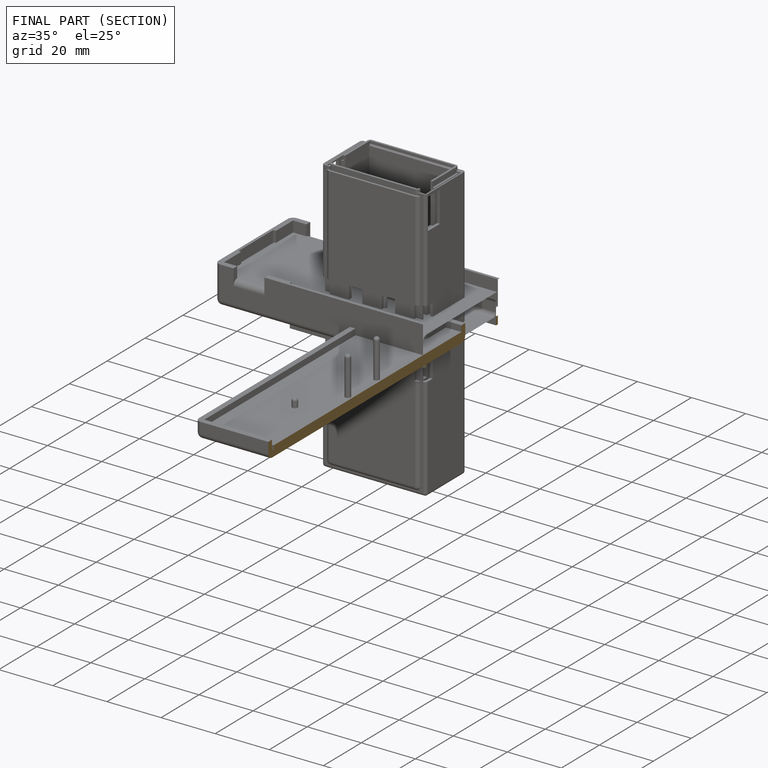
[diagram: finished part — half-section view (interior)]
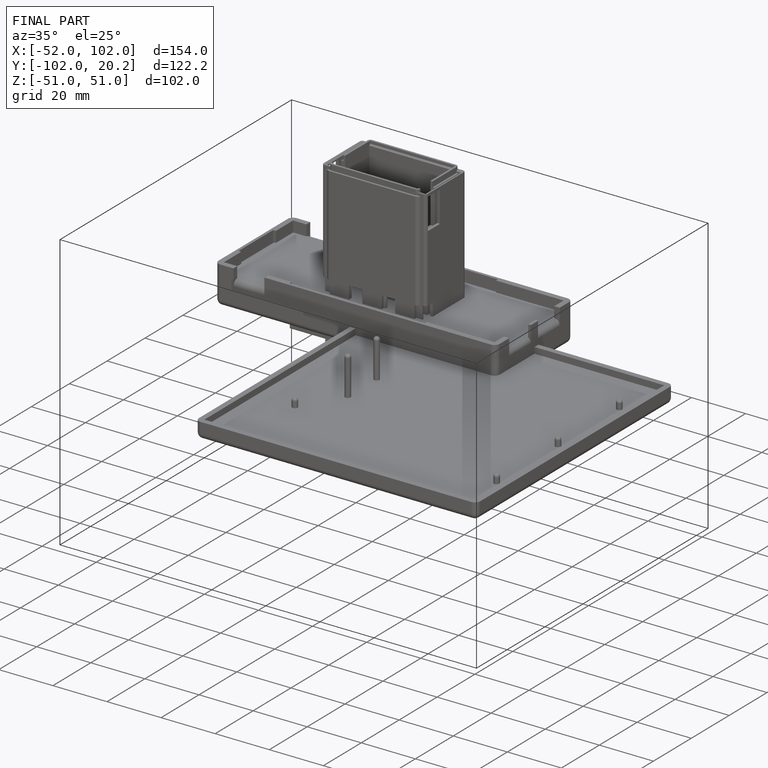
[diagram: finished part — iso view with bounding-box wireframe]
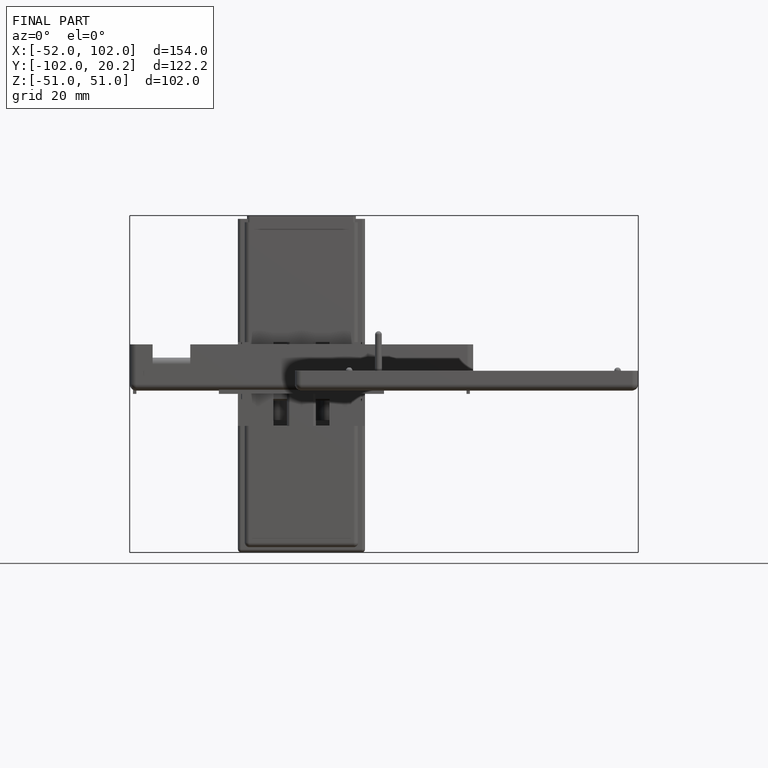
[diagram: finished part — front view with bounding-box wireframe]
